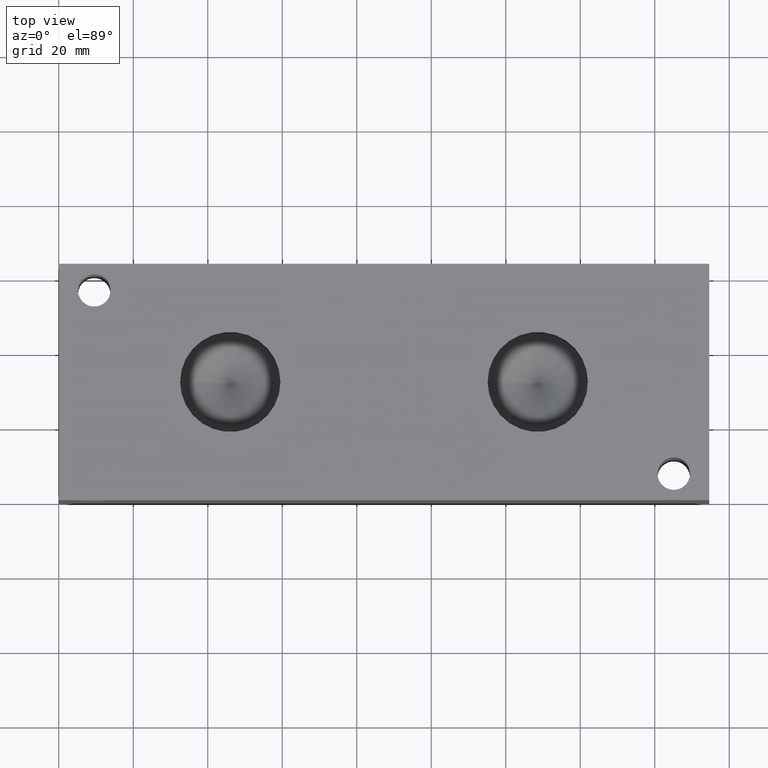
[diagram: clean part render]
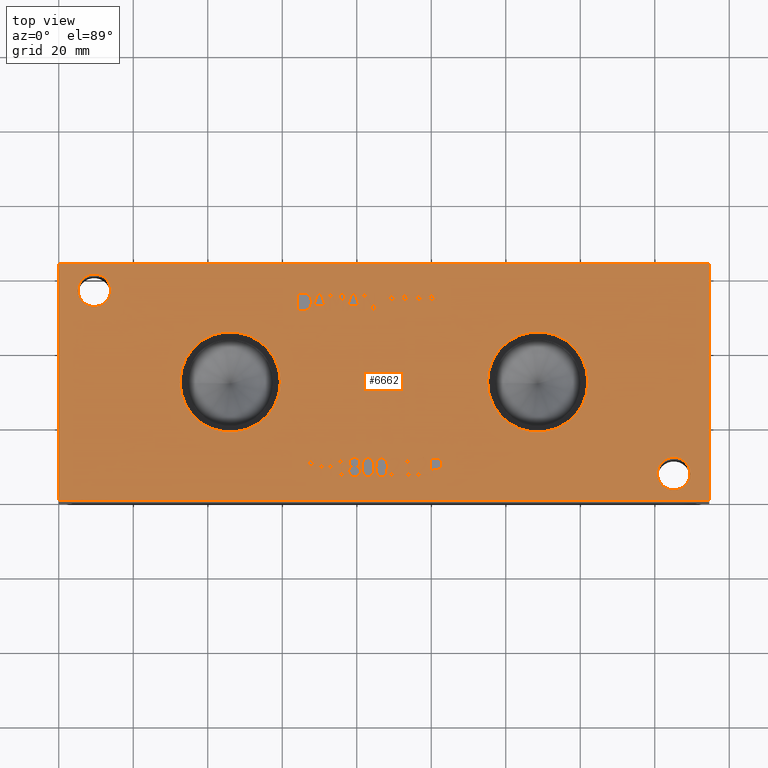
[diagram: same view with one face highlighted and labeled with its STEP entity id]
A machine part, top view. The second image highlights one B-rep face of the part: STEP entity #6662.
In plain terms, the highlighted planar face has unit normal (0, 0, 1).
Its self-contained STEP definition (entity closure, byte-faithful):
#48=CIRCLE('',#6945,4.3688);
#49=CIRCLE('',#6946,4.3688);
#50=CIRCLE('',#6947,4.3688);
#51=CIRCLE('',#6948,4.3688);
#52=CIRCLE('',#6949,13.462);
#53=CIRCLE('',#6950,13.462);
#54=CIRCLE('',#6951,13.462);
#55=CIRCLE('',#6952,13.462);
#107=FACE_BOUND('',#889,.T.);
#108=FACE_BOUND('',#890,.T.);
#109=FACE_BOUND('',#891,.T.);
#110=FACE_BOUND('',#892,.T.);
#111=FACE_BOUND('',#893,.T.);
#112=FACE_BOUND('',#894,.T.);
#113=FACE_BOUND('',#895,.T.);
#114=FACE_BOUND('',#896,.T.);
#115=FACE_BOUND('',#897,.T.);
#116=FACE_BOUND('',#898,.T.);
#117=FACE_BOUND('',#899,.T.);
#118=FACE_BOUND('',#900,.T.);
#119=FACE_BOUND('',#901,.T.);
#120=FACE_BOUND('',#902,.T.);
#121=FACE_BOUND('',#903,.T.);
#122=FACE_BOUND('',#904,.T.);
#123=FACE_BOUND('',#905,.T.);
#124=FACE_BOUND('',#906,.T.);
#125=FACE_BOUND('',#907,.T.);
#126=FACE_BOUND('',#908,.T.);
#127=FACE_BOUND('',#909,.T.);
#128=FACE_BOUND('',#910,.T.);
#129=FACE_BOUND('',#911,.T.);
#231=PLANE('',#6944);
#540=FACE_OUTER_BOUND('',#888,.T.);
#888=EDGE_LOOP('',(#4991,#4992,#4993,#4994));
#889=EDGE_LOOP('',(#4995,#4996,#4997,#4998,#4999,#5000,#5001,#5002,#5003,
#5004,#5005,#5006,#5007,#5008,#5009,#5010,#5011,#5012));
#890=EDGE_LOOP('',(#5013,#5014,#5015,#5016,#5017,#5018,#5019,#5020,#5021,
#5022,#5023,#5024,#5025,#5026,#5027,#5028,#5029,#5030));
#891=EDGE_LOOP('',(#5031,#5032,#5033,#5034,#5035,#5036,#5037,#5038,#5039,
#5040,#5041,#5042,#5043));
#892=EDGE_LOOP('',(#5044,#5045,#5046,#5047,#5048,#5049,#5050,#5051));
#893=EDGE_LOOP('',(#5052,#5053,#5054,#5055,#5056,#5057,#5058));
#894=EDGE_LOOP('',(#5059,#5060,#5061,#5062,#5063,#5064,#5065,#5066));
#895=EDGE_LOOP('',(#5067,#5068,#5069,#5070,#5071,#5072,#5073,#5074,#5075,
#5076));
#896=EDGE_LOOP('',(#5077,#5078,#5079,#5080,#5081,#5082,#5083,#5084,#5085,
#5086,#5087,#5088,#5089,#5090,#5091,#5092,#5093,#5094));
#897=EDGE_LOOP('',(#5095,#5096,#5097,#5098,#5099,#5100,#5101,#5102,#5103,
#5104,#5105,#5106,#5107,#5108,#5109,#5110,#5111,#5112));
#898=EDGE_LOOP('',(#5113,#5114));
#899=EDGE_LOOP('',(#5115,#5116));
#900=EDGE_LOOP('',(#5117,#5118));
#901=EDGE_LOOP('',(#5119,#5120));
#902=EDGE_LOOP('',(#5121,#5122,#5123,#5124,#5125,#5126,#5127,#5128,#5129,
#5130,#5131,#5132,#5133,#5134,#5135,#5136,#5137));
#903=EDGE_LOOP('',(#5138,#5139,#5140,#5141,#5142,#5143,#5144,#5145,#5146,
#5147,#5148,#5149,#5150,#5151,#5152,#5153,#5154));
#904=EDGE_LOOP('',(#5155,#5156,#5157,#5158));
#905=EDGE_LOOP('',(#5159,#5160,#5161,#5162));
#906=EDGE_LOOP('',(#5163,#5164,#5165,#5166,#5167,#5168,#5169,#5170,#5171,
#5172,#5173));
#907=EDGE_LOOP('',(#5174,#5175,#5176,#5177,#5178,#5179,#5180,#5181,#5182,
#5183,#5184,#5185,#5186,#5187,#5188,#5189,#5190,#5191));
#908=EDGE_LOOP('',(#5192,#5193,#5194,#5195,#5196,#5197,#5198,#5199,#5200,
#5201,#5202,#5203));
#909=EDGE_LOOP('',(#5204,#5205,#5206,#5207,#5208,#5209,#5210,#5211,#5212,
#5213,#5214));
#910=EDGE_LOOP('',(#5215,#5216,#5217,#5218,#5219,#5220,#5221,#5222,#5223,
#5224,#5225));
#911=EDGE_LOOP('',(#5226,#5227,#5228,#5229,#5230,#5231,#5232,#5233,#5234));
#1132=LINE('',#8674,#1838);
#1135=LINE('',#8680,#1841);
#1138=LINE('',#8686,#1844);
#1141=LINE('',#8692,#1847);
#1144=LINE('',#8698,#1850);
#1148=LINE('',#8741,#1854);
#1152=LINE('',#8749,#1858);
#1155=LINE('',#8755,#1861);
#1158=LINE('',#8761,#1864);
#1162=LINE('',#8786,#1868);
#1165=LINE('',#8792,#1871);
#1168=LINE('',#8798,#1874);
#1171=LINE('',#8804,#1877);
#1174=LINE('',#8810,#1880);
#1177=LINE('',#8815,#1883);
#1192=LINE('',#9051,#1898);
#1199=LINE('',#9133,#1905);
#1204=LINE('',#9195,#1910);
#1208=LINE('',#9203,#1914);
#1211=LINE('',#9209,#1917);
#1214=LINE('',#9215,#1920);
#1217=LINE('',#9221,#1923);
#1220=LINE('',#9227,#1926);
#1223=LINE('',#9233,#1929);
#1226=LINE('',#9239,#1932);
#1229=LINE('',#9245,#1935);
#1232=LINE('',#9251,#1938);
#1235=LINE('',#9257,#1941);
#1238=LINE('',#9262,#1944);
#1240=LINE('',#9268,#1946);
#1244=LINE('',#9276,#1950);
#1247=LINE('',#9282,#1953);
#1250=LINE('',#9288,#1956);
#1253=LINE('',#9294,#1959);
#1256=LINE('',#9300,#1962);
#1259=LINE('',#9306,#1965);
#1262=LINE('',#9312,#1968);
#1265=LINE('',#9318,#1971);
#1268=LINE('',#9324,#1974);
#1271=LINE('',#9330,#1977);
#1274=LINE('',#9336,#1980);
#1277=LINE('',#9342,#1983);
#1280=LINE('',#9348,#1986);
#1283=LINE('',#9354,#1989);
#1286=LINE('',#9360,#1992);
#1289=LINE('',#9366,#1995);
#1292=LINE('',#9371,#1998);
#1294=LINE('',#9377,#2000);
#1298=LINE('',#9385,#2004);
#1301=LINE('',#9391,#2007);
#1304=LINE('',#9397,#2010);
#1308=LINE('',#9422,#2014);
#1311=LINE('',#9428,#2017);
#1314=LINE('',#9434,#2020);
#1317=LINE('',#9440,#2023);
#1320=LINE('',#9446,#2026);
#1323=LINE('',#9451,#2029);
#1349=LINE('',#9915,#2055);
#1353=LINE('',#9923,#2059);
#1361=LINE('',#10024,#2067);
#1364=LINE('',#10030,#2070);
#1373=LINE('',#10150,#2079);
#1376=LINE('',#10155,#2082);
#1378=LINE('',#10161,#2084);
#1382=LINE('',#10169,#2088);
#1390=LINE('',#10270,#2096);
#1393=LINE('',#10276,#2099);
#1402=LINE('',#10396,#2108);
#1405=LINE('',#10401,#2111);
#1407=LINE('',#10407,#2113);
#1408=LINE('',#10409,#2114);
#1409=LINE('',#10411,#2115);
#1410=LINE('',#10412,#2116);
#1411=LINE('',#10415,#2117);
#1412=LINE('',#10417,#2118);
#1413=LINE('',#10419,#2119);
#1414=LINE('',#10421,#2120);
#1415=LINE('',#10423,#2121);
#1416=LINE('',#10425,#2122);
#1417=LINE('',#10427,#2123);
#1418=LINE('',#10429,#2124);
#1419=LINE('',#10431,#2125);
#1420=LINE('',#10433,#2126);
#1421=LINE('',#10435,#2127);
#1422=LINE('',#10437,#2128);
#1423=LINE('',#10439,#2129);
#1424=LINE('',#10441,#2130);
#1425=LINE('',#10443,#2131);
#1426=LINE('',#10445,#2132);
#1427=LINE('',#10447,#2133);
#1428=LINE('',#10448,#2134);
#1429=LINE('',#10451,#2135);
#1430=LINE('',#10453,#2136);
#1431=LINE('',#10455,#2137);
#1432=LINE('',#10457,#2138);
#1433=LINE('',#10459,#2139);
#1434=LINE('',#10461,#2140);
#1435=LINE('',#10463,#2141);
#1436=LINE('',#10465,#2142);
#1437=LINE('',#10467,#2143);
#1438=LINE('',#10469,#2144);
#1439=LINE('',#10471,#2145);
#1440=LINE('',#10473,#2146);
#1441=LINE('',#10475,#2147);
#1442=LINE('',#10477,#2148);
#1443=LINE('',#10479,#2149);
#1444=LINE('',#10481,#2150);
#1445=LINE('',#10483,#2151);
#1446=LINE('',#10484,#2152);
#1447=LINE('',#10487,#2153);
#1448=LINE('',#10489,#2154);
#1449=LINE('',#10491,#2155);
#1450=LINE('',#10493,#2156);
#1451=LINE('',#10495,#2157);
#1452=LINE('',#10497,#2158);
#1453=LINE('',#10499,#2159);
#1454=LINE('',#10501,#2160);
#1455=LINE('',#10503,#2161);
#1456=LINE('',#10505,#2162);
#1457=LINE('',#10507,#2163);
#1458=LINE('',#10509,#2164);
#1459=LINE('',#10510,#2165);
#1460=LINE('',#10513,#2166);
#1461=LINE('',#10515,#2167);
#1462=LINE('',#10517,#2168);
#1463=LINE('',#10519,#2169);
#1464=LINE('',#10521,#2170);
#1465=LINE('',#10523,#2171);
#1466=LINE('',#10525,#2172);
#1467=LINE('',#10526,#2173);
#1468=LINE('',#10544,#2174);
#1469=LINE('',#10546,#2175);
#1470=LINE('',#10548,#2176);
#1471=LINE('',#10555,#2177);
#1472=LINE('',#10557,#2178);
#1473=LINE('',#10559,#2179);
#1474=LINE('',#10561,#2180);
#1475=LINE('',#10563,#2181);
#1476=LINE('',#10565,#2182);
#1477=LINE('',#10567,#2183);
#1478=LINE('',#10568,#2184);
#1479=LINE('',#10571,#2185);
#1480=LINE('',#10573,#2186);
#1481=LINE('',#10575,#2187);
#1482=LINE('',#10577,#2188);
#1483=LINE('',#10579,#2189);
#1484=LINE('',#10581,#2190);
#1485=LINE('',#10583,#2191);
#1486=LINE('',#10585,#2192);
#1487=LINE('',#10587,#2193);
#1488=LINE('',#10588,#2194);
#1489=LINE('',#10591,#2195);
#1490=LINE('',#10593,#2196);
#1491=LINE('',#10595,#2197);
#1492=LINE('',#10597,#2198);
#1493=LINE('',#10599,#2199);
#1494=LINE('',#10601,#2200);
#1495=LINE('',#10603,#2201);
#1496=LINE('',#10605,#2202);
#1497=LINE('',#10607,#2203);
#1498=LINE('',#10609,#2204);
#1499=LINE('',#10611,#2205);
#1500=LINE('',#10613,#2206);
#1501=LINE('',#10615,#2207);
#1502=LINE('',#10617,#2208);
#1503=LINE('',#10619,#2209);
#1504=LINE('',#10621,#2210);
#1505=LINE('',#10623,#2211);
#1506=LINE('',#10624,#2212);
#1507=LINE('',#10627,#2213);
#1508=LINE('',#10629,#2214);
#1509=LINE('',#10631,#2215);
#1510=LINE('',#10633,#2216);
#1511=LINE('',#10635,#2217);
#1512=LINE('',#10637,#2218);
#1513=LINE('',#10639,#2219);
#1514=LINE('',#10641,#2220);
#1515=LINE('',#10643,#2221);
#1516=LINE('',#10645,#2222);
#1517=LINE('',#10647,#2223);
#1518=LINE('',#10649,#2224);
#1519=LINE('',#10651,#2225);
#1520=LINE('',#10653,#2226);
#1521=LINE('',#10655,#2227);
#1522=LINE('',#10657,#2228);
#1523=LINE('',#10659,#2229);
#1524=LINE('',#10660,#2230);
#1838=VECTOR('',#7210,10.);
#1841=VECTOR('',#7215,10.);
#1844=VECTOR('',#7220,10.);
#1847=VECTOR('',#7225,10.);
#1850=VECTOR('',#7230,10.);
#1854=VECTOR('',#7238,10.);
#1858=VECTOR('',#7244,10.);
#1861=VECTOR('',#7249,10.);
#1864=VECTOR('',#7254,10.);
#1868=VECTOR('',#7260,10.);
#1871=VECTOR('',#7265,10.);
#1874=VECTOR('',#7270,10.);
#1877=VECTOR('',#7275,10.);
#1880=VECTOR('',#7280,10.);
#1883=VECTOR('',#7285,10.);
#1898=VECTOR('',#7304,10.);
#1905=VECTOR('',#7313,10.);
#1910=VECTOR('',#7322,10.);
#1914=VECTOR('',#7328,10.);
#1917=VECTOR('',#7333,10.);
#1920=VECTOR('',#7338,10.);
#1923=VECTOR('',#7343,10.);
#1926=VECTOR('',#7348,10.);
#1929=VECTOR('',#7353,10.);
#1932=VECTOR('',#7358,10.);
#1935=VECTOR('',#7363,10.);
#1938=VECTOR('',#7368,10.);
#1941=VECTOR('',#7373,10.);
#1944=VECTOR('',#7378,10.);
#1946=VECTOR('',#7384,10.);
#1950=VECTOR('',#7390,10.);
#1953=VECTOR('',#7395,10.);
#1956=VECTOR('',#7400,10.);
#1959=VECTOR('',#7405,10.);
#1962=VECTOR('',#7410,10.);
#1965=VECTOR('',#7415,10.);
#1968=VECTOR('',#7420,10.);
#1971=VECTOR('',#7425,10.);
#1974=VECTOR('',#7430,10.);
#1977=VECTOR('',#7435,10.);
#1980=VECTOR('',#7440,10.);
#1983=VECTOR('',#7445,10.);
#1986=VECTOR('',#7450,10.);
#1989=VECTOR('',#7455,10.);
#1992=VECTOR('',#7460,10.);
#1995=VECTOR('',#7465,10.);
#1998=VECTOR('',#7470,10.);
#2000=VECTOR('',#7476,10.);
#2004=VECTOR('',#7482,10.);
#2007=VECTOR('',#7487,10.);
#2010=VECTOR('',#7492,10.);
#2014=VECTOR('',#7498,10.);
#2017=VECTOR('',#7503,10.);
#2020=VECTOR('',#7508,10.);
#2023=VECTOR('',#7513,10.);
#2026=VECTOR('',#7518,10.);
#2029=VECTOR('',#7523,10.);
#2055=VECTOR('',#7557,10.);
#2059=VECTOR('',#7563,10.);
#2067=VECTOR('',#7573,10.);
#2070=VECTOR('',#7578,10.);
#2079=VECTOR('',#7589,10.);
#2082=VECTOR('',#7594,10.);
#2084=VECTOR('',#7600,10.);
#2088=VECTOR('',#7606,10.);
#2096=VECTOR('',#7616,10.);
#2099=VECTOR('',#7621,10.);
#2108=VECTOR('',#7632,10.);
#2111=VECTOR('',#7637,10.);
#2113=VECTOR('',#7643,10.);
#2114=VECTOR('',#7644,10.);
#2115=VECTOR('',#7645,10.);
#2116=VECTOR('',#7646,10.);
#2117=VECTOR('',#7647,10.);
#2118=VECTOR('',#7648,10.);
#2119=VECTOR('',#7649,10.);
#2120=VECTOR('',#7650,10.);
#2121=VECTOR('',#7651,10.);
#2122=VECTOR('',#7652,10.);
#2123=VECTOR('',#7653,10.);
#2124=VECTOR('',#7654,10.);
#2125=VECTOR('',#7655,10.);
#2126=VECTOR('',#7656,10.);
#2127=VECTOR('',#7657,10.);
#2128=VECTOR('',#7658,10.);
#2129=VECTOR('',#7659,10.);
#2130=VECTOR('',#7660,10.);
#2131=VECTOR('',#7661,10.);
#2132=VECTOR('',#7662,10.);
#2133=VECTOR('',#7663,10.);
#2134=VECTOR('',#7664,10.);
#2135=VECTOR('',#7665,10.);
#2136=VECTOR('',#7666,10.);
#2137=VECTOR('',#7667,10.);
#2138=VECTOR('',#7668,10.);
#2139=VECTOR('',#7669,10.);
#2140=VECTOR('',#7670,10.);
#2141=VECTOR('',#7671,10.);
#2142=VECTOR('',#7672,10.);
#2143=VECTOR('',#7673,10.);
#2144=VECTOR('',#7674,10.);
#2145=VECTOR('',#7675,10.);
#2146=VECTOR('',#7676,10.);
#2147=VECTOR('',#7677,10.);
#2148=VECTOR('',#7678,10.);
#2149=VECTOR('',#7679,10.);
#2150=VECTOR('',#7680,10.);
#2151=VECTOR('',#7681,10.);
#2152=VECTOR('',#7682,10.);
#2153=VECTOR('',#7683,10.);
#2154=VECTOR('',#7684,10.);
#2155=VECTOR('',#7685,10.);
#2156=VECTOR('',#7686,10.);
#2157=VECTOR('',#7687,10.);
#2158=VECTOR('',#7688,10.);
#2159=VECTOR('',#7689,10.);
#2160=VECTOR('',#7690,10.);
#2161=VECTOR('',#7691,10.);
#2162=VECTOR('',#7692,10.);
#2163=VECTOR('',#7693,10.);
#2164=VECTOR('',#7694,10.);
#2165=VECTOR('',#7695,10.);
#2166=VECTOR('',#7696,10.);
#2167=VECTOR('',#7697,10.);
#2168=VECTOR('',#7698,10.);
#2169=VECTOR('',#7699,10.);
#2170=VECTOR('',#7700,10.);
#2171=VECTOR('',#7701,10.);
#2172=VECTOR('',#7702,10.);
#2173=VECTOR('',#7703,10.);
#2174=VECTOR('',#7704,10.);
#2175=VECTOR('',#7705,10.);
#2176=VECTOR('',#7706,10.);
#2177=VECTOR('',#7707,10.);
#2178=VECTOR('',#7708,10.);
#2179=VECTOR('',#7709,10.);
#2180=VECTOR('',#7710,10.);
#2181=VECTOR('',#7711,10.);
#2182=VECTOR('',#7712,10.);
#2183=VECTOR('',#7713,10.);
#2184=VECTOR('',#7714,10.);
#2185=VECTOR('',#7715,10.);
#2186=VECTOR('',#7716,10.);
#2187=VECTOR('',#7717,10.);
#2188=VECTOR('',#7718,10.);
#2189=VECTOR('',#7719,10.);
#2190=VECTOR('',#7720,10.);
#2191=VECTOR('',#7721,10.);
#2192=VECTOR('',#7722,10.);
#2193=VECTOR('',#7723,10.);
#2194=VECTOR('',#7724,10.);
#2195=VECTOR('',#7725,10.);
#2196=VECTOR('',#7726,10.);
#2197=VECTOR('',#7727,10.);
#2198=VECTOR('',#7728,10.);
#2199=VECTOR('',#7729,10.);
#2200=VECTOR('',#7730,10.);
#2201=VECTOR('',#7731,10.);
#2202=VECTOR('',#7732,10.);
#2203=VECTOR('',#7733,10.);
#2204=VECTOR('',#7734,10.);
#2205=VECTOR('',#7735,10.);
#2206=VECTOR('',#7736,10.);
#2207=VECTOR('',#7737,10.);
#2208=VECTOR('',#7738,10.);
#2209=VECTOR('',#7739,10.);
#2210=VECTOR('',#7740,10.);
#2211=VECTOR('',#7741,10.);
#2212=VECTOR('',#7742,10.);
#2213=VECTOR('',#7743,10.);
#2214=VECTOR('',#7744,10.);
#2215=VECTOR('',#7745,10.);
#2216=VECTOR('',#7746,10.);
#2217=VECTOR('',#7747,10.);
#2218=VECTOR('',#7748,10.);
#2219=VECTOR('',#7749,10.);
#2220=VECTOR('',#7750,10.);
#2221=VECTOR('',#7751,10.);
#2222=VECTOR('',#7752,10.);
#2223=VECTOR('',#7753,10.);
#2224=VECTOR('',#7754,10.);
#2225=VECTOR('',#7755,10.);
#2226=VECTOR('',#7756,10.);
#2227=VECTOR('',#7757,10.);
#2228=VECTOR('',#7758,10.);
#2229=VECTOR('',#7759,10.);
#2230=VECTOR('',#7760,10.);
#2536=B_SPLINE_CURVE_WITH_KNOTS('',2,(#8641,#8642,#8643,#8644),
 .UNSPECIFIED.,.F.,.F.,(3,1,3),(0.,1.,2.),.UNSPECIFIED.);
#2538=B_SPLINE_CURVE_WITH_KNOTS('',2,(#8662,#8663,#8664,#8665),
 .UNSPECIFIED.,.F.,.F.,(3,1,3),(0.,1.,2.),.UNSPECIFIED.);
#2540=B_SPLINE_CURVE_WITH_KNOTS('',2,(#8711,#8712,#8713,#8714),
 .UNSPECIFIED.,.F.,.F.,(3,1,3),(0.,1.,2.),.UNSPECIFIED.);
#2542=B_SPLINE_CURVE_WITH_KNOTS('',2,(#8729,#8730,#8731,#8732),
 .UNSPECIFIED.,.F.,.F.,(3,1,3),(0.,1.,2.),.UNSPECIFIED.);
#2544=B_SPLINE_CURVE_WITH_KNOTS('',2,(#8774,#8775,#8776,#8777),
 .UNSPECIFIED.,.F.,.F.,(3,1,3),(0.,1.,2.),.UNSPECIFIED.);
#2566=B_SPLINE_CURVE_WITH_KNOTS('',2,(#9018,#9019,#9020,#9021),
 .UNSPECIFIED.,.F.,.F.,(3,1,3),(0.,1.,2.),.UNSPECIFIED.);
#2568=B_SPLINE_CURVE_WITH_KNOTS('',2,(#9039,#9040,#9041,#9042),
 .UNSPECIFIED.,.F.,.F.,(3,1,3),(0.,1.,2.),.UNSPECIFIED.);
#2570=B_SPLINE_CURVE_WITH_KNOTS('',2,(#9064,#9065,#9066,#9067),
 .UNSPECIFIED.,.F.,.F.,(3,1,3),(0.,1.,2.),.UNSPECIFIED.);
#2572=B_SPLINE_CURVE_WITH_KNOTS('',2,(#9083,#9084,#9085,#9086),
 .UNSPECIFIED.,.F.,.F.,(3,1,3),(0.,1.,2.),.UNSPECIFIED.);
#2574=B_SPLINE_CURVE_WITH_KNOTS('',2,(#9102,#9103,#9104,#9105),
 .UNSPECIFIED.,.F.,.F.,(3,1,3),(0.,1.,2.),.UNSPECIFIED.);
#2576=B_SPLINE_CURVE_WITH_KNOTS('',2,(#9121,#9122,#9123,#9124),
 .UNSPECIFIED.,.F.,.F.,(3,1,3),(0.,1.,2.),.UNSPECIFIED.);
#2578=B_SPLINE_CURVE_WITH_KNOTS('',2,(#9146,#9147,#9148,#9149),
 .UNSPECIFIED.,.F.,.F.,(3,1,3),(0.,1.,2.),.UNSPECIFIED.);
#2580=B_SPLINE_CURVE_WITH_KNOTS('',2,(#9165,#9166,#9167,#9168),
 .UNSPECIFIED.,.F.,.F.,(3,1,3),(0.,1.,2.),.UNSPECIFIED.);
#2582=B_SPLINE_CURVE_WITH_KNOTS('',2,(#9183,#9184,#9185,#9186),
 .UNSPECIFIED.,.F.,.F.,(3,1,3),(0.,1.,2.),.UNSPECIFIED.);
#2584=B_SPLINE_CURVE_WITH_KNOTS('',2,(#9410,#9411,#9412,#9413),
 .UNSPECIFIED.,.F.,.F.,(3,1,3),(0.,1.,2.),.UNSPECIFIED.);
#2602=B_SPLINE_CURVE_WITH_KNOTS('',2,(#9616,#9617,#9618,#9619),
 .UNSPECIFIED.,.F.,.F.,(3,1,3),(0.,1.,2.),.UNSPECIFIED.);
#2604=B_SPLINE_CURVE_WITH_KNOTS('',2,(#9637,#9638,#9639,#9640),
 .UNSPECIFIED.,.F.,.F.,(3,1,3),(0.,1.,2.),.UNSPECIFIED.);
#2606=B_SPLINE_CURVE_WITH_KNOTS('',2,(#9656,#9657,#9658,#9659),
 .UNSPECIFIED.,.F.,.F.,(3,1,3),(0.,1.,2.),.UNSPECIFIED.);
#2608=B_SPLINE_CURVE_WITH_KNOTS('',2,(#9674,#9675,#9676,#9677),
 .UNSPECIFIED.,.F.,.F.,(3,1,3),(0.,1.,2.),.UNSPECIFIED.);
#2626=B_SPLINE_CURVE_WITH_KNOTS('',2,(#9845,#9846,#9847,#9848),
 .UNSPECIFIED.,.F.,.F.,(3,1,3),(0.,1.,2.),.UNSPECIFIED.);
#2628=B_SPLINE_CURVE_WITH_KNOTS('',2,(#9866,#9867,#9868,#9869),
 .UNSPECIFIED.,.F.,.F.,(3,1,3),(0.,1.,2.),.UNSPECIFIED.);
#2630=B_SPLINE_CURVE_WITH_KNOTS('',2,(#9885,#9886,#9887,#9888),
 .UNSPECIFIED.,.F.,.F.,(3,1,3),(0.,1.,2.),.UNSPECIFIED.);
#2632=B_SPLINE_CURVE_WITH_KNOTS('',2,(#9903,#9904,#9905,#9906),
 .UNSPECIFIED.,.F.,.F.,(3,1,3),(0.,1.,2.),.UNSPECIFIED.);
#2634=B_SPLINE_CURVE_WITH_KNOTS('',2,(#9936,#9937,#9938,#9939),
 .UNSPECIFIED.,.F.,.F.,(3,1,3),(0.,1.,2.),.UNSPECIFIED.);
#2636=B_SPLINE_CURVE_WITH_KNOTS('',2,(#9955,#9956,#9957,#9958),
 .UNSPECIFIED.,.F.,.F.,(3,1,3),(0.,1.,2.),.UNSPECIFIED.);
#2638=B_SPLINE_CURVE_WITH_KNOTS('',2,(#9974,#9975,#9976,#9977),
 .UNSPECIFIED.,.F.,.F.,(3,1,3),(0.,1.,2.),.UNSPECIFIED.);
#2640=B_SPLINE_CURVE_WITH_KNOTS('',2,(#9993,#9994,#9995,#9996),
 .UNSPECIFIED.,.F.,.F.,(3,1,3),(0.,1.,2.),.UNSPECIFIED.);
#2642=B_SPLINE_CURVE_WITH_KNOTS('',2,(#10012,#10013,#10014,#10015),
 .UNSPECIFIED.,.F.,.F.,(3,1,3),(0.,1.,2.),.UNSPECIFIED.);
#2644=B_SPLINE_CURVE_WITH_KNOTS('',2,(#10043,#10044,#10045,#10046),
 .UNSPECIFIED.,.F.,.F.,(3,1,3),(0.,1.,2.),.UNSPECIFIED.);
#2646=B_SPLINE_CURVE_WITH_KNOTS('',2,(#10062,#10063,#10064,#10065),
 .UNSPECIFIED.,.F.,.F.,(3,1,3),(0.,1.,2.),.UNSPECIFIED.);
#2648=B_SPLINE_CURVE_WITH_KNOTS('',2,(#10081,#10082,#10083,#10084),
 .UNSPECIFIED.,.F.,.F.,(3,1,3),(0.,1.,2.),.UNSPECIFIED.);
#2650=B_SPLINE_CURVE_WITH_KNOTS('',2,(#10100,#10101,#10102,#10103),
 .UNSPECIFIED.,.F.,.F.,(3,1,3),(0.,1.,2.),.UNSPECIFIED.);
#2652=B_SPLINE_CURVE_WITH_KNOTS('',2,(#10119,#10120,#10121,#10122),
 .UNSPECIFIED.,.F.,.F.,(3,1,3),(0.,1.,2.),.UNSPECIFIED.);
#2654=B_SPLINE_CURVE_WITH_KNOTS('',2,(#10138,#10139,#10140,#10141),
 .UNSPECIFIED.,.F.,.F.,(3,1,3),(0.,1.,2.),.UNSPECIFIED.);
#2656=B_SPLINE_CURVE_WITH_KNOTS('',2,(#10182,#10183,#10184,#10185),
 .UNSPECIFIED.,.F.,.F.,(3,1,3),(0.,1.,2.),.UNSPECIFIED.);
#2658=B_SPLINE_CURVE_WITH_KNOTS('',2,(#10201,#10202,#10203,#10204),
 .UNSPECIFIED.,.F.,.F.,(3,1,3),(0.,1.,2.),.UNSPECIFIED.);
#2660=B_SPLINE_CURVE_WITH_KNOTS('',2,(#10220,#10221,#10222,#10223),
 .UNSPECIFIED.,.F.,.F.,(3,1,3),(0.,1.,2.),.UNSPECIFIED.);
#2662=B_SPLINE_CURVE_WITH_KNOTS('',2,(#10239,#10240,#10241,#10242),
 .UNSPECIFIED.,.F.,.F.,(3,1,3),(0.,1.,2.),.UNSPECIFIED.);
#2664=B_SPLINE_CURVE_WITH_KNOTS('',2,(#10258,#10259,#10260,#10261),
 .UNSPECIFIED.,.F.,.F.,(3,1,3),(0.,1.,2.),.UNSPECIFIED.);
#2666=B_SPLINE_CURVE_WITH_KNOTS('',2,(#10289,#10290,#10291,#10292),
 .UNSPECIFIED.,.F.,.F.,(3,1,3),(0.,1.,2.),.UNSPECIFIED.);
#2668=B_SPLINE_CURVE_WITH_KNOTS('',2,(#10308,#10309,#10310,#10311),
 .UNSPECIFIED.,.F.,.F.,(3,1,3),(0.,1.,2.),.UNSPECIFIED.);
#2670=B_SPLINE_CURVE_WITH_KNOTS('',2,(#10327,#10328,#10329,#10330),
 .UNSPECIFIED.,.F.,.F.,(3,1,3),(0.,1.,2.),.UNSPECIFIED.);
#2672=B_SPLINE_CURVE_WITH_KNOTS('',2,(#10346,#10347,#10348,#10349),
 .UNSPECIFIED.,.F.,.F.,(3,1,3),(0.,1.,2.),.UNSPECIFIED.);
#2674=B_SPLINE_CURVE_WITH_KNOTS('',2,(#10365,#10366,#10367,#10368),
 .UNSPECIFIED.,.F.,.F.,(3,1,3),(0.,1.,2.),.UNSPECIFIED.);
#2676=B_SPLINE_CURVE_WITH_KNOTS('',2,(#10384,#10385,#10386,#10387),
 .UNSPECIFIED.,.F.,.F.,(3,1,3),(0.,1.,2.),.UNSPECIFIED.);
#2678=B_SPLINE_CURVE_WITH_KNOTS('',2,(#10529,#10530,#10531,#10532),
 .UNSPECIFIED.,.F.,.F.,(3,1,3),(0.,1.,2.),.UNSPECIFIED.);
#2679=B_SPLINE_CURVE_WITH_KNOTS('',2,(#10534,#10535,#10536,#10537),
 .UNSPECIFIED.,.F.,.F.,(3,1,3),(0.,1.,2.),.UNSPECIFIED.);
#2680=B_SPLINE_CURVE_WITH_KNOTS('',2,(#10539,#10540,#10541,#10542),
 .UNSPECIFIED.,.F.,.F.,(3,1,3),(0.,1.,2.),.UNSPECIFIED.);
#2681=B_SPLINE_CURVE_WITH_KNOTS('',2,(#10549,#10550,#10551,#10552),
 .UNSPECIFIED.,.F.,.F.,(3,1,3),(0.,1.,2.),.UNSPECIFIED.);
#2708=VERTEX_POINT('',#8639);
#2709=VERTEX_POINT('',#8640);
#2712=VERTEX_POINT('',#8661);
#2714=VERTEX_POINT('',#8673);
#2716=VERTEX_POINT('',#8679);
#2718=VERTEX_POINT('',#8685);
#2720=VERTEX_POINT('',#8691);
#2722=VERTEX_POINT('',#8697);
#2724=VERTEX_POINT('',#8710);
#2726=VERTEX_POINT('',#8739);
#2727=VERTEX_POINT('',#8740);
#2730=VERTEX_POINT('',#8748);
#2732=VERTEX_POINT('',#8754);
#2734=VERTEX_POINT('',#8760);
#2736=VERTEX_POINT('',#8773);
#2738=VERTEX_POINT('',#8785);
#2740=VERTEX_POINT('',#8791);
#2742=VERTEX_POINT('',#8797);
#2744=VERTEX_POINT('',#8803);
#2746=VERTEX_POINT('',#8809);
#2768=VERTEX_POINT('',#9016);
#2769=VERTEX_POINT('',#9017);
#2772=VERTEX_POINT('',#9038);
#2774=VERTEX_POINT('',#9050);
#2776=VERTEX_POINT('',#9063);
#2778=VERTEX_POINT('',#9082);
#2780=VERTEX_POINT('',#9101);
#2782=VERTEX_POINT('',#9120);
#2784=VERTEX_POINT('',#9132);
#2786=VERTEX_POINT('',#9145);
#2788=VERTEX_POINT('',#9164);
#2790=VERTEX_POINT('',#9193);
#2791=VERTEX_POINT('',#9194);
#2794=VERTEX_POINT('',#9202);
#2796=VERTEX_POINT('',#9208);
#2798=VERTEX_POINT('',#9214);
#2800=VERTEX_POINT('',#9220);
#2802=VERTEX_POINT('',#9226);
#2804=VERTEX_POINT('',#9232);
#2806=VERTEX_POINT('',#9238);
#2808=VERTEX_POINT('',#9244);
#2810=VERTEX_POINT('',#9250);
#2812=VERTEX_POINT('',#9256);
#2814=VERTEX_POINT('',#9266);
#2815=VERTEX_POINT('',#9267);
#2818=VERTEX_POINT('',#9275);
#2820=VERTEX_POINT('',#9281);
#2822=VERTEX_POINT('',#9287);
#2824=VERTEX_POINT('',#9293);
#2826=VERTEX_POINT('',#9299);
#2828=VERTEX_POINT('',#9305);
#2830=VERTEX_POINT('',#9311);
#2832=VERTEX_POINT('',#9317);
#2834=VERTEX_POINT('',#9323);
#2836=VERTEX_POINT('',#9329);
#2838=VERTEX_POINT('',#9335);
#2840=VERTEX_POINT('',#9341);
#2842=VERTEX_POINT('',#9347);
#2844=VERTEX_POINT('',#9353);
#2846=VERTEX_POINT('',#9359);
#2848=VERTEX_POINT('',#9365);
#2850=VERTEX_POINT('',#9375);
#2851=VERTEX_POINT('',#9376);
#2854=VERTEX_POINT('',#9384);
#2856=VERTEX_POINT('',#9390);
#2858=VERTEX_POINT('',#9396);
#2860=VERTEX_POINT('',#9409);
#2862=VERTEX_POINT('',#9421);
#2864=VERTEX_POINT('',#9427);
#2866=VERTEX_POINT('',#9433);
#2868=VERTEX_POINT('',#9439);
#2870=VERTEX_POINT('',#9445);
#2888=VERTEX_POINT('',#9614);
#2889=VERTEX_POINT('',#9615);
#2892=VERTEX_POINT('',#9636);
#2894=VERTEX_POINT('',#9655);
#2912=VERTEX_POINT('',#9843);
#2913=VERTEX_POINT('',#9844);
#2916=VERTEX_POINT('',#9865);
#2918=VERTEX_POINT('',#9884);
#2920=VERTEX_POINT('',#9913);
#2921=VERTEX_POINT('',#9914);
#2924=VERTEX_POINT('',#9922);
#2926=VERTEX_POINT('',#9935);
#2928=VERTEX_POINT('',#9954);
#2930=VERTEX_POINT('',#9973);
#2932=VERTEX_POINT('',#9992);
#2934=VERTEX_POINT('',#10011);
#2936=VERTEX_POINT('',#10023);
#2938=VERTEX_POINT('',#10029);
#2940=VERTEX_POINT('',#10042);
#2942=VERTEX_POINT('',#10061);
#2944=VERTEX_POINT('',#10080);
#2946=VERTEX_POINT('',#10099);
#2948=VERTEX_POINT('',#10118);
#2950=VERTEX_POINT('',#10137);
#2952=VERTEX_POINT('',#10149);
#2954=VERTEX_POINT('',#10159);
#2955=VERTEX_POINT('',#10160);
#2958=VERTEX_POINT('',#10168);
#2960=VERTEX_POINT('',#10181);
#2962=VERTEX_POINT('',#10200);
#2964=VERTEX_POINT('',#10219);
#2966=VERTEX_POINT('',#10238);
#2968=VERTEX_POINT('',#10257);
#2970=VERTEX_POINT('',#10269);
#2972=VERTEX_POINT('',#10275);
#2974=VERTEX_POINT('',#10288);
#2976=VERTEX_POINT('',#10307);
#2978=VERTEX_POINT('',#10326);
#2980=VERTEX_POINT('',#10345);
#2982=VERTEX_POINT('',#10364);
#2984=VERTEX_POINT('',#10383);
#2986=VERTEX_POINT('',#10395);
#2988=VERTEX_POINT('',#10405);
#2989=VERTEX_POINT('',#10406);
#2990=VERTEX_POINT('',#10408);
#2991=VERTEX_POINT('',#10410);
#2992=VERTEX_POINT('',#10413);
#2993=VERTEX_POINT('',#10414);
#2994=VERTEX_POINT('',#10416);
#2995=VERTEX_POINT('',#10418);
#2996=VERTEX_POINT('',#10420);
#2997=VERTEX_POINT('',#10422);
#2998=VERTEX_POINT('',#10424);
#2999=VERTEX_POINT('',#10426);
#3000=VERTEX_POINT('',#10428);
#3001=VERTEX_POINT('',#10430);
#3002=VERTEX_POINT('',#10432);
#3003=VERTEX_POINT('',#10434);
#3004=VERTEX_POINT('',#10436);
#3005=VERTEX_POINT('',#10438);
#3006=VERTEX_POINT('',#10440);
#3007=VERTEX_POINT('',#10442);
#3008=VERTEX_POINT('',#10444);
#3009=VERTEX_POINT('',#10446);
#3010=VERTEX_POINT('',#10449);
#3011=VERTEX_POINT('',#10450);
#3012=VERTEX_POINT('',#10452);
#3013=VERTEX_POINT('',#10454);
#3014=VERTEX_POINT('',#10456);
#3015=VERTEX_POINT('',#10458);
#3016=VERTEX_POINT('',#10460);
#3017=VERTEX_POINT('',#10462);
#3018=VERTEX_POINT('',#10464);
#3019=VERTEX_POINT('',#10466);
#3020=VERTEX_POINT('',#10468);
#3021=VERTEX_POINT('',#10470);
#3022=VERTEX_POINT('',#10472);
#3023=VERTEX_POINT('',#10474);
#3024=VERTEX_POINT('',#10476);
#3025=VERTEX_POINT('',#10478);
#3026=VERTEX_POINT('',#10480);
#3027=VERTEX_POINT('',#10482);
#3028=VERTEX_POINT('',#10485);
#3029=VERTEX_POINT('',#10486);
#3030=VERTEX_POINT('',#10488);
#3031=VERTEX_POINT('',#10490);
#3032=VERTEX_POINT('',#10492);
#3033=VERTEX_POINT('',#10494);
#3034=VERTEX_POINT('',#10496);
#3035=VERTEX_POINT('',#10498);
#3036=VERTEX_POINT('',#10500);
#3037=VERTEX_POINT('',#10502);
#3038=VERTEX_POINT('',#10504);
#3039=VERTEX_POINT('',#10506);
#3040=VERTEX_POINT('',#10508);
#3041=VERTEX_POINT('',#10511);
#3042=VERTEX_POINT('',#10512);
#3043=VERTEX_POINT('',#10514);
#3044=VERTEX_POINT('',#10516);
#3045=VERTEX_POINT('',#10518);
#3046=VERTEX_POINT('',#10520);
#3047=VERTEX_POINT('',#10522);
#3048=VERTEX_POINT('',#10524);
#3049=VERTEX_POINT('',#10527);
#3050=VERTEX_POINT('',#10528);
#3051=VERTEX_POINT('',#10533);
#3052=VERTEX_POINT('',#10538);
#3053=VERTEX_POINT('',#10543);
#3054=VERTEX_POINT('',#10545);
#3055=VERTEX_POINT('',#10547);
#3056=VERTEX_POINT('',#10553);
#3057=VERTEX_POINT('',#10554);
#3058=VERTEX_POINT('',#10556);
#3059=VERTEX_POINT('',#10558);
#3060=VERTEX_POINT('',#10560);
#3061=VERTEX_POINT('',#10562);
#3062=VERTEX_POINT('',#10564);
#3063=VERTEX_POINT('',#10566);
#3064=VERTEX_POINT('',#10569);
#3065=VERTEX_POINT('',#10570);
#3066=VERTEX_POINT('',#10572);
#3067=VERTEX_POINT('',#10574);
#3068=VERTEX_POINT('',#10576);
#3069=VERTEX_POINT('',#10578);
#3070=VERTEX_POINT('',#10580);
#3071=VERTEX_POINT('',#10582);
#3072=VERTEX_POINT('',#10584);
#3073=VERTEX_POINT('',#10586);
#3074=VERTEX_POINT('',#10589);
#3075=VERTEX_POINT('',#10590);
#3076=VERTEX_POINT('',#10592);
#3077=VERTEX_POINT('',#10594);
#3078=VERTEX_POINT('',#10596);
#3079=VERTEX_POINT('',#10598);
#3080=VERTEX_POINT('',#10600);
#3081=VERTEX_POINT('',#10602);
#3082=VERTEX_POINT('',#10604);
#3083=VERTEX_POINT('',#10606);
#3084=VERTEX_POINT('',#10608);
#3085=VERTEX_POINT('',#10610);
#3086=VERTEX_POINT('',#10612);
#3087=VERTEX_POINT('',#10614);
#3088=VERTEX_POINT('',#10616);
#3089=VERTEX_POINT('',#10618);
#3090=VERTEX_POINT('',#10620);
#3091=VERTEX_POINT('',#10622);
#3092=VERTEX_POINT('',#10625);
#3093=VERTEX_POINT('',#10626);
#3094=VERTEX_POINT('',#10628);
#3095=VERTEX_POINT('',#10630);
#3096=VERTEX_POINT('',#10632);
#3097=VERTEX_POINT('',#10634);
#3098=VERTEX_POINT('',#10636);
#3099=VERTEX_POINT('',#10638);
#3100=VERTEX_POINT('',#10640);
#3101=VERTEX_POINT('',#10642);
#3102=VERTEX_POINT('',#10644);
#3103=VERTEX_POINT('',#10646);
#3104=VERTEX_POINT('',#10648);
#3105=VERTEX_POINT('',#10650);
#3106=VERTEX_POINT('',#10652);
#3107=VERTEX_POINT('',#10654);
#3108=VERTEX_POINT('',#10656);
#3109=VERTEX_POINT('',#10658);
#3110=VERTEX_POINT('',#10661);
#3111=VERTEX_POINT('',#10662);
#3112=VERTEX_POINT('',#10665);
#3113=VERTEX_POINT('',#10666);
#3114=VERTEX_POINT('',#10669);
#3115=VERTEX_POINT('',#10670);
#3116=VERTEX_POINT('',#10673);
#3117=VERTEX_POINT('',#10674);
#3343=EDGE_CURVE('',#2708,#2709,#2536,.T.);
#3347=EDGE_CURVE('',#2712,#2708,#2538,.T.);
#3350=EDGE_CURVE('',#2714,#2712,#1132,.T.);
#3353=EDGE_CURVE('',#2716,#2714,#1135,.T.);
#3356=EDGE_CURVE('',#2718,#2716,#1138,.T.);
#3359=EDGE_CURVE('',#2720,#2718,#1141,.T.);
#3362=EDGE_CURVE('',#2722,#2720,#1144,.T.);
#3365=EDGE_CURVE('',#2724,#2722,#2540,.T.);
#3368=EDGE_CURVE('',#2709,#2724,#2542,.T.);
#3370=EDGE_CURVE('',#2726,#2727,#1148,.T.);
#3374=EDGE_CURVE('',#2730,#2726,#1152,.T.);
#3377=EDGE_CURVE('',#2732,#2730,#1155,.T.);
#3380=EDGE_CURVE('',#2734,#2732,#1158,.T.);
#3383=EDGE_CURVE('',#2736,#2734,#2544,.T.);
#3386=EDGE_CURVE('',#2738,#2736,#1162,.T.);
#3389=EDGE_CURVE('',#2740,#2738,#1165,.T.);
#3392=EDGE_CURVE('',#2742,#2740,#1168,.T.);
#3395=EDGE_CURVE('',#2744,#2742,#1171,.T.);
#3398=EDGE_CURVE('',#2746,#2744,#1174,.T.);
#3401=EDGE_CURVE('',#2727,#2746,#1177,.T.);
#3433=EDGE_CURVE('',#2768,#2769,#2566,.T.);
#3437=EDGE_CURVE('',#2772,#2768,#2568,.T.);
#3440=EDGE_CURVE('',#2774,#2772,#1192,.T.);
#3443=EDGE_CURVE('',#2776,#2774,#2570,.T.);
#3446=EDGE_CURVE('',#2778,#2776,#2572,.T.);
#3449=EDGE_CURVE('',#2780,#2778,#2574,.T.);
#3452=EDGE_CURVE('',#2782,#2780,#2576,.T.);
#3455=EDGE_CURVE('',#2784,#2782,#1199,.T.);
#3458=EDGE_CURVE('',#2786,#2784,#2578,.T.);
#3461=EDGE_CURVE('',#2788,#2786,#2580,.T.);
#3464=EDGE_CURVE('',#2769,#2788,#2582,.T.);
#3466=EDGE_CURVE('',#2790,#2791,#1204,.T.);
#3470=EDGE_CURVE('',#2794,#2790,#1208,.T.);
#3473=EDGE_CURVE('',#2796,#2794,#1211,.T.);
#3476=EDGE_CURVE('',#2798,#2796,#1214,.T.);
#3479=EDGE_CURVE('',#2800,#2798,#1217,.T.);
#3482=EDGE_CURVE('',#2802,#2800,#1220,.T.);
#3485=EDGE_CURVE('',#2804,#2802,#1223,.T.);
#3488=EDGE_CURVE('',#2806,#2804,#1226,.T.);
#3491=EDGE_CURVE('',#2808,#2806,#1229,.T.);
#3494=EDGE_CURVE('',#2810,#2808,#1232,.T.);
#3497=EDGE_CURVE('',#2812,#2810,#1235,.T.);
#3500=EDGE_CURVE('',#2791,#2812,#1238,.T.);
#3502=EDGE_CURVE('',#2814,#2815,#1240,.T.);
#3506=EDGE_CURVE('',#2818,#2814,#1244,.T.);
#3509=EDGE_CURVE('',#2820,#2818,#1247,.T.);
#3512=EDGE_CURVE('',#2822,#2820,#1250,.T.);
#3515=EDGE_CURVE('',#2824,#2822,#1253,.T.);
#3518=EDGE_CURVE('',#2826,#2824,#1256,.T.);
#3521=EDGE_CURVE('',#2828,#2826,#1259,.T.);
#3524=EDGE_CURVE('',#2830,#2828,#1262,.T.);
#3527=EDGE_CURVE('',#2832,#2830,#1265,.T.);
#3530=EDGE_CURVE('',#2834,#2832,#1268,.T.);
#3533=EDGE_CURVE('',#2836,#2834,#1271,.T.);
#3536=EDGE_CURVE('',#2838,#2836,#1274,.T.);
#3539=EDGE_CURVE('',#2840,#2838,#1277,.T.);
#3542=EDGE_CURVE('',#2842,#2840,#1280,.T.);
#3545=EDGE_CURVE('',#2844,#2842,#1283,.T.);
#3548=EDGE_CURVE('',#2846,#2844,#1286,.T.);
#3551=EDGE_CURVE('',#2848,#2846,#1289,.T.);
#3554=EDGE_CURVE('',#2815,#2848,#1292,.T.);
#3556=EDGE_CURVE('',#2850,#2851,#1294,.T.);
#3560=EDGE_CURVE('',#2854,#2850,#1298,.T.);
#3563=EDGE_CURVE('',#2856,#2854,#1301,.T.);
#3566=EDGE_CURVE('',#2858,#2856,#1304,.T.);
#3569=EDGE_CURVE('',#2860,#2858,#2584,.T.);
#3572=EDGE_CURVE('',#2862,#2860,#1308,.T.);
#3575=EDGE_CURVE('',#2864,#2862,#1311,.T.);
#3578=EDGE_CURVE('',#2866,#2864,#1314,.T.);
#3581=EDGE_CURVE('',#2868,#2866,#1317,.T.);
#3584=EDGE_CURVE('',#2870,#2868,#1320,.T.);
#3587=EDGE_CURVE('',#2851,#2870,#1323,.T.);
#3613=EDGE_CURVE('',#2888,#2889,#2602,.T.);
#3617=EDGE_CURVE('',#2892,#2888,#2604,.T.);
#3620=EDGE_CURVE('',#2894,#2892,#2606,.T.);
#3623=EDGE_CURVE('',#2889,#2894,#2608,.T.);
#3649=EDGE_CURVE('',#2912,#2913,#2626,.T.);
#3653=EDGE_CURVE('',#2916,#2912,#2628,.T.);
#3656=EDGE_CURVE('',#2918,#2916,#2630,.T.);
#3659=EDGE_CURVE('',#2913,#2918,#2632,.T.);
#3661=EDGE_CURVE('',#2920,#2921,#1349,.T.);
#3665=EDGE_CURVE('',#2924,#2920,#1353,.T.);
#3668=EDGE_CURVE('',#2926,#2924,#2634,.T.);
#3671=EDGE_CURVE('',#2928,#2926,#2636,.T.);
#3674=EDGE_CURVE('',#2930,#2928,#2638,.T.);
#3677=EDGE_CURVE('',#2932,#2930,#2640,.T.);
#3680=EDGE_CURVE('',#2934,#2932,#2642,.T.);
#3683=EDGE_CURVE('',#2936,#2934,#1361,.T.);
#3686=EDGE_CURVE('',#2938,#2936,#1364,.T.);
#3689=EDGE_CURVE('',#2940,#2938,#2644,.T.);
#3692=EDGE_CURVE('',#2942,#2940,#2646,.T.);
#3695=EDGE_CURVE('',#2944,#2942,#2648,.T.);
#3698=EDGE_CURVE('',#2946,#2944,#2650,.T.);
#3701=EDGE_CURVE('',#2948,#2946,#2652,.T.);
#3704=EDGE_CURVE('',#2950,#2948,#2654,.T.);
#3707=EDGE_CURVE('',#2952,#2950,#1373,.T.);
#3710=EDGE_CURVE('',#2921,#2952,#1376,.T.);
#3712=EDGE_CURVE('',#2954,#2955,#1378,.T.);
#3716=EDGE_CURVE('',#2958,#2954,#1382,.T.);
#3719=EDGE_CURVE('',#2960,#2958,#2656,.T.);
#3722=EDGE_CURVE('',#2962,#2960,#2658,.T.);
#3725=EDGE_CURVE('',#2964,#2962,#2660,.T.);
#3728=EDGE_CURVE('',#2966,#2964,#2662,.T.);
#3731=EDGE_CURVE('',#2968,#2966,#2664,.T.);
#3734=EDGE_CURVE('',#2970,#2968,#1390,.T.);
#3737=EDGE_CURVE('',#2972,#2970,#1393,.T.);
#3740=EDGE_CURVE('',#2974,#2972,#2666,.T.);
#3743=EDGE_CURVE('',#2976,#2974,#2668,.T.);
#3746=EDGE_CURVE('',#2978,#2976,#2670,.T.);
#3749=EDGE_CURVE('',#2980,#2978,#2672,.T.);
#3752=EDGE_CURVE('',#2982,#2980,#2674,.T.);
#3755=EDGE_CURVE('',#2984,#2982,#2676,.T.);
#3758=EDGE_CURVE('',#2986,#2984,#1402,.T.);
#3761=EDGE_CURVE('',#2955,#2986,#1405,.T.);
#3763=EDGE_CURVE('',#2988,#2989,#1407,.T.);
#3764=EDGE_CURVE('',#2989,#2990,#1408,.T.);
#3765=EDGE_CURVE('',#2990,#2991,#1409,.T.);
#3766=EDGE_CURVE('',#2991,#2988,#1410,.T.);
#3767=EDGE_CURVE('',#2992,#2993,#1411,.T.);
#3768=EDGE_CURVE('',#2993,#2994,#1412,.T.);
#3769=EDGE_CURVE('',#2994,#2995,#1413,.T.);
#3770=EDGE_CURVE('',#2995,#2996,#1414,.T.);
#3771=EDGE_CURVE('',#2996,#2997,#1415,.T.);
#3772=EDGE_CURVE('',#2997,#2998,#1416,.T.);
#3773=EDGE_CURVE('',#2998,#2999,#1417,.T.);
#3774=EDGE_CURVE('',#2999,#3000,#1418,.T.);
#3775=EDGE_CURVE('',#3000,#3001,#1419,.T.);
#3776=EDGE_CURVE('',#3001,#3002,#1420,.T.);
#3777=EDGE_CURVE('',#3002,#3003,#1421,.T.);
#3778=EDGE_CURVE('',#3003,#3004,#1422,.T.);
#3779=EDGE_CURVE('',#3004,#3005,#1423,.T.);
#3780=EDGE_CURVE('',#3005,#3006,#1424,.T.);
#3781=EDGE_CURVE('',#3006,#3007,#1425,.T.);
#3782=EDGE_CURVE('',#3007,#3008,#1426,.T.);
#3783=EDGE_CURVE('',#3008,#3009,#1427,.T.);
#3784=EDGE_CURVE('',#3009,#2992,#1428,.T.);
#3785=EDGE_CURVE('',#3010,#3011,#1429,.T.);
#3786=EDGE_CURVE('',#3011,#3012,#1430,.T.);
#3787=EDGE_CURVE('',#3012,#3013,#1431,.T.);
#3788=EDGE_CURVE('',#3013,#3014,#1432,.T.);
#3789=EDGE_CURVE('',#3014,#3015,#1433,.T.);
#3790=EDGE_CURVE('',#3015,#3016,#1434,.T.);
#3791=EDGE_CURVE('',#3016,#3017,#1435,.T.);
#3792=EDGE_CURVE('',#3017,#3018,#1436,.T.);
#3793=EDGE_CURVE('',#3018,#3019,#1437,.T.);
#3794=EDGE_CURVE('',#3019,#3020,#1438,.T.);
#3795=EDGE_CURVE('',#3020,#3021,#1439,.T.);
#3796=EDGE_CURVE('',#3021,#3022,#1440,.T.);
#3797=EDGE_CURVE('',#3022,#3023,#1441,.T.);
#3798=EDGE_CURVE('',#3023,#3024,#1442,.T.);
#3799=EDGE_CURVE('',#3024,#3025,#1443,.T.);
#3800=EDGE_CURVE('',#3025,#3026,#1444,.T.);
#3801=EDGE_CURVE('',#3026,#3027,#1445,.T.);
#3802=EDGE_CURVE('',#3027,#3010,#1446,.T.);
#3803=EDGE_CURVE('',#3028,#3029,#1447,.T.);
#3804=EDGE_CURVE('',#3029,#3030,#1448,.T.);
#3805=EDGE_CURVE('',#3030,#3031,#1449,.T.);
#3806=EDGE_CURVE('',#3031,#3032,#1450,.T.);
#3807=EDGE_CURVE('',#3032,#3033,#1451,.T.);
#3808=EDGE_CURVE('',#3033,#3034,#1452,.T.);
#3809=EDGE_CURVE('',#3034,#3035,#1453,.T.);
#3810=EDGE_CURVE('',#3035,#3036,#1454,.T.);
#3811=EDGE_CURVE('',#3036,#3037,#1455,.T.);
#3812=EDGE_CURVE('',#3037,#3038,#1456,.T.);
#3813=EDGE_CURVE('',#3038,#3039,#1457,.T.);
#3814=EDGE_CURVE('',#3039,#3040,#1458,.T.);
#3815=EDGE_CURVE('',#3040,#3028,#1459,.T.);
#3816=EDGE_CURVE('',#3041,#3042,#1460,.T.);
#3817=EDGE_CURVE('',#3042,#3043,#1461,.T.);
#3818=EDGE_CURVE('',#3043,#3044,#1462,.T.);
#3819=EDGE_CURVE('',#3044,#3045,#1463,.T.);
#3820=EDGE_CURVE('',#3045,#3046,#1464,.T.);
#3821=EDGE_CURVE('',#3046,#3047,#1465,.T.);
#3822=EDGE_CURVE('',#3047,#3048,#1466,.T.);
#3823=EDGE_CURVE('',#3048,#3041,#1467,.T.);
#3824=EDGE_CURVE('',#3049,#3050,#2678,.T.);
#3825=EDGE_CURVE('',#3050,#3051,#2679,.T.);
#3826=EDGE_CURVE('',#3051,#3052,#2680,.T.);
#3827=EDGE_CURVE('',#3052,#3053,#1468,.T.);
#3828=EDGE_CURVE('',#3053,#3054,#1469,.T.);
#3829=EDGE_CURVE('',#3054,#3055,#1470,.T.);
#3830=EDGE_CURVE('',#3055,#3049,#2681,.T.);
#3831=EDGE_CURVE('',#3056,#3057,#1471,.T.);
#3832=EDGE_CURVE('',#3057,#3058,#1472,.T.);
#3833=EDGE_CURVE('',#3058,#3059,#1473,.T.);
#3834=EDGE_CURVE('',#3059,#3060,#1474,.T.);
#3835=EDGE_CURVE('',#3060,#3061,#1475,.T.);
#3836=EDGE_CURVE('',#3061,#3062,#1476,.T.);
#3837=EDGE_CURVE('',#3062,#3063,#1477,.T.);
#3838=EDGE_CURVE('',#3063,#3056,#1478,.T.);
#3839=EDGE_CURVE('',#3064,#3065,#1479,.T.);
#3840=EDGE_CURVE('',#3065,#3066,#1480,.T.);
#3841=EDGE_CURVE('',#3066,#3067,#1481,.T.);
#3842=EDGE_CURVE('',#3067,#3068,#1482,.T.);
#3843=EDGE_CURVE('',#3068,#3069,#1483,.T.);
#3844=EDGE_CURVE('',#3069,#3070,#1484,.T.);
#3845=EDGE_CURVE('',#3070,#3071,#1485,.T.);
#3846=EDGE_CURVE('',#3071,#3072,#1486,.T.);
#3847=EDGE_CURVE('',#3072,#3073,#1487,.T.);
#3848=EDGE_CURVE('',#3073,#3064,#1488,.T.);
#3849=EDGE_CURVE('',#3074,#3075,#1489,.T.);
#3850=EDGE_CURVE('',#3075,#3076,#1490,.T.);
#3851=EDGE_CURVE('',#3076,#3077,#1491,.T.);
#3852=EDGE_CURVE('',#3077,#3078,#1492,.T.);
#3853=EDGE_CURVE('',#3078,#3079,#1493,.T.);
#3854=EDGE_CURVE('',#3079,#3080,#1494,.T.);
#3855=EDGE_CURVE('',#3080,#3081,#1495,.T.);
#3856=EDGE_CURVE('',#3081,#3082,#1496,.T.);
#3857=EDGE_CURVE('',#3082,#3083,#1497,.T.);
#3858=EDGE_CURVE('',#3083,#3084,#1498,.T.);
#3859=EDGE_CURVE('',#3084,#3085,#1499,.T.);
#3860=EDGE_CURVE('',#3085,#3086,#1500,.T.);
#3861=EDGE_CURVE('',#3086,#3087,#1501,.T.);
#3862=EDGE_CURVE('',#3087,#3088,#1502,.T.);
#3863=EDGE_CURVE('',#3088,#3089,#1503,.T.);
#3864=EDGE_CURVE('',#3089,#3090,#1504,.T.);
#3865=EDGE_CURVE('',#3090,#3091,#1505,.T.);
#3866=EDGE_CURVE('',#3091,#3074,#1506,.T.);
#3867=EDGE_CURVE('',#3092,#3093,#1507,.T.);
#3868=EDGE_CURVE('',#3093,#3094,#1508,.T.);
#3869=EDGE_CURVE('',#3094,#3095,#1509,.T.);
#3870=EDGE_CURVE('',#3095,#3096,#1510,.T.);
#3871=EDGE_CURVE('',#3096,#3097,#1511,.T.);
#3872=EDGE_CURVE('',#3097,#3098,#1512,.T.);
#3873=EDGE_CURVE('',#3098,#3099,#1513,.T.);
#3874=EDGE_CURVE('',#3099,#3100,#1514,.T.);
#3875=EDGE_CURVE('',#3100,#3101,#1515,.T.);
#3876=EDGE_CURVE('',#3101,#3102,#1516,.T.);
#3877=EDGE_CURVE('',#3102,#3103,#1517,.T.);
#3878=EDGE_CURVE('',#3103,#3104,#1518,.T.);
#3879=EDGE_CURVE('',#3104,#3105,#1519,.T.);
#3880=EDGE_CURVE('',#3105,#3106,#1520,.T.);
#3881=EDGE_CURVE('',#3106,#3107,#1521,.T.);
#3882=EDGE_CURVE('',#3107,#3108,#1522,.T.);
#3883=EDGE_CURVE('',#3108,#3109,#1523,.T.);
#3884=EDGE_CURVE('',#3109,#3092,#1524,.T.);
#3885=EDGE_CURVE('',#3110,#3111,#48,.T.);
#3886=EDGE_CURVE('',#3111,#3110,#49,.T.);
#3887=EDGE_CURVE('',#3112,#3113,#50,.T.);
#3888=EDGE_CURVE('',#3113,#3112,#51,.T.);
#3889=EDGE_CURVE('',#3114,#3115,#52,.T.);
#3890=EDGE_CURVE('',#3115,#3114,#53,.T.);
#3891=EDGE_CURVE('',#3116,#3117,#54,.T.);
#3892=EDGE_CURVE('',#3117,#3116,#55,.T.);
#4991=ORIENTED_EDGE('',*,*,#3763,.T.);
#4992=ORIENTED_EDGE('',*,*,#3764,.T.);
#4993=ORIENTED_EDGE('',*,*,#3765,.T.);
#4994=ORIENTED_EDGE('',*,*,#3766,.T.);
#4995=ORIENTED_EDGE('',*,*,#3767,.T.);
#4996=ORIENTED_EDGE('',*,*,#3768,.T.);
#4997=ORIENTED_EDGE('',*,*,#3769,.T.);
#4998=ORIENTED_EDGE('',*,*,#3770,.T.);
#4999=ORIENTED_EDGE('',*,*,#3771,.T.);
#5000=ORIENTED_EDGE('',*,*,#3772,.T.);
#5001=ORIENTED_EDGE('',*,*,#3773,.T.);
#5002=ORIENTED_EDGE('',*,*,#3774,.T.);
#5003=ORIENTED_EDGE('',*,*,#3775,.T.);
#5004=ORIENTED_EDGE('',*,*,#3776,.T.);
#5005=ORIENTED_EDGE('',*,*,#3777,.T.);
#5006=ORIENTED_EDGE('',*,*,#3778,.T.);
#5007=ORIENTED_EDGE('',*,*,#3779,.T.);
#5008=ORIENTED_EDGE('',*,*,#3780,.T.);
#5009=ORIENTED_EDGE('',*,*,#3781,.T.);
#5010=ORIENTED_EDGE('',*,*,#3782,.T.);
#5011=ORIENTED_EDGE('',*,*,#3783,.T.);
#5012=ORIENTED_EDGE('',*,*,#3784,.T.);
#5013=ORIENTED_EDGE('',*,*,#3785,.T.);
#5014=ORIENTED_EDGE('',*,*,#3786,.T.);
#5015=ORIENTED_EDGE('',*,*,#3787,.T.);
#5016=ORIENTED_EDGE('',*,*,#3788,.T.);
#5017=ORIENTED_EDGE('',*,*,#3789,.T.);
#5018=ORIENTED_EDGE('',*,*,#3790,.T.);
#5019=ORIENTED_EDGE('',*,*,#3791,.T.);
#5020=ORIENTED_EDGE('',*,*,#3792,.T.);
#5021=ORIENTED_EDGE('',*,*,#3793,.T.);
#5022=ORIENTED_EDGE('',*,*,#3794,.T.);
#5023=ORIENTED_EDGE('',*,*,#3795,.T.);
#5024=ORIENTED_EDGE('',*,*,#3796,.T.);
#5025=ORIENTED_EDGE('',*,*,#3797,.T.);
#5026=ORIENTED_EDGE('',*,*,#3798,.T.);
#5027=ORIENTED_EDGE('',*,*,#3799,.T.);
#5028=ORIENTED_EDGE('',*,*,#3800,.T.);
#5029=ORIENTED_EDGE('',*,*,#3801,.T.);
#5030=ORIENTED_EDGE('',*,*,#3802,.T.);
#5031=ORIENTED_EDGE('',*,*,#3803,.T.);
#5032=ORIENTED_EDGE('',*,*,#3804,.T.);
#5033=ORIENTED_EDGE('',*,*,#3805,.T.);
#5034=ORIENTED_EDGE('',*,*,#3806,.T.);
#5035=ORIENTED_EDGE('',*,*,#3807,.T.);
#5036=ORIENTED_EDGE('',*,*,#3808,.T.);
#5037=ORIENTED_EDGE('',*,*,#3809,.T.);
#5038=ORIENTED_EDGE('',*,*,#3810,.T.);
#5039=ORIENTED_EDGE('',*,*,#3811,.T.);
#5040=ORIENTED_EDGE('',*,*,#3812,.T.);
#5041=ORIENTED_EDGE('',*,*,#3813,.T.);
#5042=ORIENTED_EDGE('',*,*,#3814,.T.);
#5043=ORIENTED_EDGE('',*,*,#3815,.T.);
#5044=ORIENTED_EDGE('',*,*,#3816,.T.);
#5045=ORIENTED_EDGE('',*,*,#3817,.T.);
#5046=ORIENTED_EDGE('',*,*,#3818,.T.);
#5047=ORIENTED_EDGE('',*,*,#3819,.T.);
#5048=ORIENTED_EDGE('',*,*,#3820,.T.);
#5049=ORIENTED_EDGE('',*,*,#3821,.T.);
#5050=ORIENTED_EDGE('',*,*,#3822,.T.);
#5051=ORIENTED_EDGE('',*,*,#3823,.T.);
#5052=ORIENTED_EDGE('',*,*,#3824,.T.);
#5053=ORIENTED_EDGE('',*,*,#3825,.T.);
#5054=ORIENTED_EDGE('',*,*,#3826,.T.);
#5055=ORIENTED_EDGE('',*,*,#3827,.T.);
#5056=ORIENTED_EDGE('',*,*,#3828,.T.);
#5057=ORIENTED_EDGE('',*,*,#3829,.T.);
#5058=ORIENTED_EDGE('',*,*,#3830,.T.);
#5059=ORIENTED_EDGE('',*,*,#3831,.T.);
#5060=ORIENTED_EDGE('',*,*,#3832,.T.);
#5061=ORIENTED_EDGE('',*,*,#3833,.T.);
#5062=ORIENTED_EDGE('',*,*,#3834,.T.);
#5063=ORIENTED_EDGE('',*,*,#3835,.T.);
#5064=ORIENTED_EDGE('',*,*,#3836,.T.);
#5065=ORIENTED_EDGE('',*,*,#3837,.T.);
#5066=ORIENTED_EDGE('',*,*,#3838,.T.);
#5067=ORIENTED_EDGE('',*,*,#3839,.T.);
#5068=ORIENTED_EDGE('',*,*,#3840,.T.);
#5069=ORIENTED_EDGE('',*,*,#3841,.T.);
#5070=ORIENTED_EDGE('',*,*,#3842,.T.);
#5071=ORIENTED_EDGE('',*,*,#3843,.T.);
#5072=ORIENTED_EDGE('',*,*,#3844,.T.);
#5073=ORIENTED_EDGE('',*,*,#3845,.T.);
#5074=ORIENTED_EDGE('',*,*,#3846,.T.);
#5075=ORIENTED_EDGE('',*,*,#3847,.T.);
#5076=ORIENTED_EDGE('',*,*,#3848,.T.);
#5077=ORIENTED_EDGE('',*,*,#3849,.T.);
#5078=ORIENTED_EDGE('',*,*,#3850,.T.);
#5079=ORIENTED_EDGE('',*,*,#3851,.T.);
#5080=ORIENTED_EDGE('',*,*,#3852,.T.);
#5081=ORIENTED_EDGE('',*,*,#3853,.T.);
#5082=ORIENTED_EDGE('',*,*,#3854,.T.);
#5083=ORIENTED_EDGE('',*,*,#3855,.T.);
#5084=ORIENTED_EDGE('',*,*,#3856,.T.);
#5085=ORIENTED_EDGE('',*,*,#3857,.T.);
#5086=ORIENTED_EDGE('',*,*,#3858,.T.);
#5087=ORIENTED_EDGE('',*,*,#3859,.T.);
#5088=ORIENTED_EDGE('',*,*,#3860,.T.);
#5089=ORIENTED_EDGE('',*,*,#3861,.T.);
#5090=ORIENTED_EDGE('',*,*,#3862,.T.);
#5091=ORIENTED_EDGE('',*,*,#3863,.T.);
#5092=ORIENTED_EDGE('',*,*,#3864,.T.);
#5093=ORIENTED_EDGE('',*,*,#3865,.T.);
#5094=ORIENTED_EDGE('',*,*,#3866,.T.);
#5095=ORIENTED_EDGE('',*,*,#3867,.T.);
#5096=ORIENTED_EDGE('',*,*,#3868,.T.);
#5097=ORIENTED_EDGE('',*,*,#3869,.T.);
#5098=ORIENTED_EDGE('',*,*,#3870,.T.);
#5099=ORIENTED_EDGE('',*,*,#3871,.T.);
#5100=ORIENTED_EDGE('',*,*,#3872,.T.);
#5101=ORIENTED_EDGE('',*,*,#3873,.T.);
#5102=ORIENTED_EDGE('',*,*,#3874,.T.);
#5103=ORIENTED_EDGE('',*,*,#3875,.T.);
#5104=ORIENTED_EDGE('',*,*,#3876,.T.);
#5105=ORIENTED_EDGE('',*,*,#3877,.T.);
#5106=ORIENTED_EDGE('',*,*,#3878,.T.);
#5107=ORIENTED_EDGE('',*,*,#3879,.T.);
#5108=ORIENTED_EDGE('',*,*,#3880,.T.);
#5109=ORIENTED_EDGE('',*,*,#3881,.T.);
#5110=ORIENTED_EDGE('',*,*,#3882,.T.);
#5111=ORIENTED_EDGE('',*,*,#3883,.T.);
#5112=ORIENTED_EDGE('',*,*,#3884,.T.);
#5113=ORIENTED_EDGE('',*,*,#3885,.T.);
#5114=ORIENTED_EDGE('',*,*,#3886,.T.);
#5115=ORIENTED_EDGE('',*,*,#3887,.T.);
#5116=ORIENTED_EDGE('',*,*,#3888,.T.);
#5117=ORIENTED_EDGE('',*,*,#3889,.T.);
#5118=ORIENTED_EDGE('',*,*,#3890,.T.);
#5119=ORIENTED_EDGE('',*,*,#3891,.T.);
#5120=ORIENTED_EDGE('',*,*,#3892,.T.);
#5121=ORIENTED_EDGE('',*,*,#3712,.T.);
#5122=ORIENTED_EDGE('',*,*,#3761,.T.);
#5123=ORIENTED_EDGE('',*,*,#3758,.T.);
#5124=ORIENTED_EDGE('',*,*,#3755,.T.);
#5125=ORIENTED_EDGE('',*,*,#3752,.T.);
#5126=ORIENTED_EDGE('',*,*,#3749,.T.);
#5127=ORIENTED_EDGE('',*,*,#3746,.T.);
#5128=ORIENTED_EDGE('',*,*,#3743,.T.);
#5129=ORIENTED_EDGE('',*,*,#3740,.T.);
#5130=ORIENTED_EDGE('',*,*,#3737,.T.);
#5131=ORIENTED_EDGE('',*,*,#3734,.T.);
#5132=ORIENTED_EDGE('',*,*,#3731,.T.);
#5133=ORIENTED_EDGE('',*,*,#3728,.T.);
#5134=ORIENTED_EDGE('',*,*,#3725,.T.);
#5135=ORIENTED_EDGE('',*,*,#3722,.T.);
#5136=ORIENTED_EDGE('',*,*,#3719,.T.);
#5137=ORIENTED_EDGE('',*,*,#3716,.T.);
#5138=ORIENTED_EDGE('',*,*,#3661,.T.);
#5139=ORIENTED_EDGE('',*,*,#3710,.T.);
#5140=ORIENTED_EDGE('',*,*,#3707,.T.);
#5141=ORIENTED_EDGE('',*,*,#3704,.T.);
#5142=ORIENTED_EDGE('',*,*,#3701,.T.);
#5143=ORIENTED_EDGE('',*,*,#3698,.T.);
#5144=ORIENTED_EDGE('',*,*,#3695,.T.);
#5145=ORIENTED_EDGE('',*,*,#3692,.T.);
#5146=ORIENTED_EDGE('',*,*,#3689,.T.);
#5147=ORIENTED_EDGE('',*,*,#3686,.T.);
#5148=ORIENTED_EDGE('',*,*,#3683,.T.);
#5149=ORIENTED_EDGE('',*,*,#3680,.T.);
#5150=ORIENTED_EDGE('',*,*,#3677,.T.);
#5151=ORIENTED_EDGE('',*,*,#3674,.T.);
#5152=ORIENTED_EDGE('',*,*,#3671,.T.);
#5153=ORIENTED_EDGE('',*,*,#3668,.T.);
#5154=ORIENTED_EDGE('',*,*,#3665,.T.);
#5155=ORIENTED_EDGE('',*,*,#3649,.T.);
#5156=ORIENTED_EDGE('',*,*,#3659,.T.);
#5157=ORIENTED_EDGE('',*,*,#3656,.T.);
#5158=ORIENTED_EDGE('',*,*,#3653,.T.);
#5159=ORIENTED_EDGE('',*,*,#3613,.T.);
#5160=ORIENTED_EDGE('',*,*,#3623,.T.);
#5161=ORIENTED_EDGE('',*,*,#3620,.T.);
#5162=ORIENTED_EDGE('',*,*,#3617,.T.);
#5163=ORIENTED_EDGE('',*,*,#3556,.T.);
#5164=ORIENTED_EDGE('',*,*,#3587,.T.);
#5165=ORIENTED_EDGE('',*,*,#3584,.T.);
#5166=ORIENTED_EDGE('',*,*,#3581,.T.);
#5167=ORIENTED_EDGE('',*,*,#3578,.T.);
#5168=ORIENTED_EDGE('',*,*,#3575,.T.);
#5169=ORIENTED_EDGE('',*,*,#3572,.T.);
#5170=ORIENTED_EDGE('',*,*,#3569,.T.);
#5171=ORIENTED_EDGE('',*,*,#3566,.T.);
#5172=ORIENTED_EDGE('',*,*,#3563,.T.);
#5173=ORIENTED_EDGE('',*,*,#3560,.T.);
#5174=ORIENTED_EDGE('',*,*,#3502,.T.);
#5175=ORIENTED_EDGE('',*,*,#3554,.T.);
#5176=ORIENTED_EDGE('',*,*,#3551,.T.);
#5177=ORIENTED_EDGE('',*,*,#3548,.T.);
#5178=ORIENTED_EDGE('',*,*,#3545,.T.);
#5179=ORIENTED_EDGE('',*,*,#3542,.T.);
#5180=ORIENTED_EDGE('',*,*,#3539,.T.);
#5181=ORIENTED_EDGE('',*,*,#3536,.T.);
#5182=ORIENTED_EDGE('',*,*,#3533,.T.);
#5183=ORIENTED_EDGE('',*,*,#3530,.T.);
#5184=ORIENTED_EDGE('',*,*,#3527,.T.);
#5185=ORIENTED_EDGE('',*,*,#3524,.T.);
#5186=ORIENTED_EDGE('',*,*,#3521,.T.);
#5187=ORIENTED_EDGE('',*,*,#3518,.T.);
#5188=ORIENTED_EDGE('',*,*,#3515,.T.);
#5189=ORIENTED_EDGE('',*,*,#3512,.T.);
#5190=ORIENTED_EDGE('',*,*,#3509,.T.);
#5191=ORIENTED_EDGE('',*,*,#3506,.T.);
#5192=ORIENTED_EDGE('',*,*,#3466,.T.);
#5193=ORIENTED_EDGE('',*,*,#3500,.T.);
#5194=ORIENTED_EDGE('',*,*,#3497,.T.);
#5195=ORIENTED_EDGE('',*,*,#3494,.T.);
#5196=ORIENTED_EDGE('',*,*,#3491,.T.);
#5197=ORIENTED_EDGE('',*,*,#3488,.T.);
#5198=ORIENTED_EDGE('',*,*,#3485,.T.);
#5199=ORIENTED_EDGE('',*,*,#3482,.T.);
#5200=ORIENTED_EDGE('',*,*,#3479,.T.);
#5201=ORIENTED_EDGE('',*,*,#3476,.T.);
#5202=ORIENTED_EDGE('',*,*,#3473,.T.);
#5203=ORIENTED_EDGE('',*,*,#3470,.T.);
#5204=ORIENTED_EDGE('',*,*,#3433,.T.);
#5205=ORIENTED_EDGE('',*,*,#3464,.T.);
#5206=ORIENTED_EDGE('',*,*,#3461,.T.);
#5207=ORIENTED_EDGE('',*,*,#3458,.T.);
#5208=ORIENTED_EDGE('',*,*,#3455,.T.);
#5209=ORIENTED_EDGE('',*,*,#3452,.T.);
#5210=ORIENTED_EDGE('',*,*,#3449,.T.);
#5211=ORIENTED_EDGE('',*,*,#3446,.T.);
#5212=ORIENTED_EDGE('',*,*,#3443,.T.);
#5213=ORIENTED_EDGE('',*,*,#3440,.T.);
#5214=ORIENTED_EDGE('',*,*,#3437,.T.);
#5215=ORIENTED_EDGE('',*,*,#3370,.T.);
#5216=ORIENTED_EDGE('',*,*,#3401,.T.);
#5217=ORIENTED_EDGE('',*,*,#3398,.T.);
#5218=ORIENTED_EDGE('',*,*,#3395,.T.);
#5219=ORIENTED_EDGE('',*,*,#3392,.T.);
#5220=ORIENTED_EDGE('',*,*,#3389,.T.);
#5221=ORIENTED_EDGE('',*,*,#3386,.T.);
#5222=ORIENTED_EDGE('',*,*,#3383,.T.);
#5223=ORIENTED_EDGE('',*,*,#3380,.T.);
#5224=ORIENTED_EDGE('',*,*,#3377,.T.);
#5225=ORIENTED_EDGE('',*,*,#3374,.T.);
#5226=ORIENTED_EDGE('',*,*,#3343,.T.);
#5227=ORIENTED_EDGE('',*,*,#3368,.T.);
#5228=ORIENTED_EDGE('',*,*,#3365,.T.);
#5229=ORIENTED_EDGE('',*,*,#3362,.T.);
#5230=ORIENTED_EDGE('',*,*,#3359,.T.);
#5231=ORIENTED_EDGE('',*,*,#3356,.T.);
#5232=ORIENTED_EDGE('',*,*,#3353,.T.);
#5233=ORIENTED_EDGE('',*,*,#3350,.T.);
#5234=ORIENTED_EDGE('',*,*,#3347,.T.);
#6662=ADVANCED_FACE('',(#540,#107,#108,#109,#110,#111,#112,#113,#114,#115,
#116,#117,#118,#119,#120,#121,#122,#123,#124,#125,#126,#127,#128,#129),
#231,.T.);
#6944=AXIS2_PLACEMENT_3D('',#10404,#7641,#7642);
#6945=AXIS2_PLACEMENT_3D('',#10663,#7761,#7762);
#6946=AXIS2_PLACEMENT_3D('',#10664,#7763,#7764);
#6947=AXIS2_PLACEMENT_3D('',#10667,#7765,#7766);
#6948=AXIS2_PLACEMENT_3D('',#10668,#7767,#7768);
#6949=AXIS2_PLACEMENT_3D('',#10671,#7769,#7770);
#6950=AXIS2_PLACEMENT_3D('',#10672,#7771,#7772);
#6951=AXIS2_PLACEMENT_3D('',#10675,#7773,#7774);
#6952=AXIS2_PLACEMENT_3D('',#10676,#7775,#7776);
#7210=DIRECTION('',(1.,0.,0.));
#7215=DIRECTION('',(0.,1.,0.));
#7220=DIRECTION('',(-1.,0.,0.));
#7225=DIRECTION('',(0.,-1.,0.));
#7230=DIRECTION('',(-1.,0.,0.));
#7238=DIRECTION('',(0.,-1.,0.));
#7244=DIRECTION('',(1.,0.,0.));
#7249=DIRECTION('',(0.,-1.,0.));
#7254=DIRECTION('',(1.,0.,0.));
#7260=DIRECTION('',(0.,1.,0.));
#7265=DIRECTION('',(-1.,0.,0.));
#7270=DIRECTION('',(0.,1.,0.));
#7275=DIRECTION('',(1.,0.,0.));
#7280=DIRECTION('',(0.,1.,0.));
#7285=DIRECTION('',(-1.,0.,0.));
#7304=DIRECTION('',(0.,-1.,0.));
#7313=DIRECTION('',(0.,1.,0.));
#7322=DIRECTION('',(0.,-1.,0.));
#7328=DIRECTION('',(1.,0.,0.));
#7333=DIRECTION('',(0.,1.,0.));
#7338=DIRECTION('',(1.,0.,0.));
#7343=DIRECTION('',(0.,-1.,0.));
#7348=DIRECTION('',(1.,0.,0.));
#7353=DIRECTION('',(0.,1.,0.));
#7358=DIRECTION('',(-1.,0.,0.));
#7363=DIRECTION('',(0.,-1.,0.));
#7368=DIRECTION('',(-1.,0.,0.));
#7373=DIRECTION('',(0.,1.,0.));
#7378=DIRECTION('',(-1.,0.,0.));
#7384=DIRECTION('',(0.863671970566992,-0.50405428998961,0.));
#7390=DIRECTION('',(-0.864954307083121,-0.5018506218571,0.));
#7395=DIRECTION('',(0.510320389620609,-0.859984360286552,0.));
#7400=DIRECTION('',(0.833932205726538,0.551866900848448,0.));
#7405=DIRECTION('',(-0.0231725839648085,-0.999731479624601,0.));
#7410=DIRECTION('',(1.,0.,0.));
#7415=DIRECTION('',(-0.0198636297743478,0.999802698642181,0.));
#7420=DIRECTION('',(0.83062769207368,-0.556828193575318,0.));
#7425=DIRECTION('',(0.517259170391712,0.855828809193566,0.));
#7430=DIRECTION('',(-0.863671970566992,0.504054289989609,0.));
#7435=DIRECTION('',(0.862387849576918,0.506248157430819,0.));
#7440=DIRECTION('',(-0.517259170391711,0.855828809193567,0.));
#7445=DIRECTION('',(-0.829670163866863,-0.558253902081421,0.));
#7450=DIRECTION('',(0.0165540227281047,0.999862972777529,0.));
#7455=DIRECTION('',(-1.,0.,0.));
#7460=DIRECTION('',(0.0198636297743478,-0.999802698642181,0.));
#7465=DIRECTION('',(-0.832994863913617,0.553280721418644,0.));
#7470=DIRECTION('',(-0.510320389620608,-0.859984360286552,0.));
#7476=DIRECTION('',(0.,-1.,0.));
#7482=DIRECTION('',(1.,0.,0.));
#7487=DIRECTION('',(0.,-1.,0.));
#7492=DIRECTION('',(1.,0.,0.));
#7498=DIRECTION('',(0.,1.,0.));
#7503=DIRECTION('',(-1.,0.,0.));
#7508=DIRECTION('',(0.,1.,0.));
#7513=DIRECTION('',(1.,0.,0.));
#7518=DIRECTION('',(0.,1.,0.));
#7523=DIRECTION('',(-1.,0.,0.));
#7557=DIRECTION('',(0.,-1.,0.));
#7563=DIRECTION('',(1.,0.,0.));
#7573=DIRECTION('',(0.,1.,0.));
#7578=DIRECTION('',(-1.,0.,0.));
#7589=DIRECTION('',(0.,1.,0.));
#7594=DIRECTION('',(-1.,0.,0.));
#7600=DIRECTION('',(0.,-1.,0.));
#7606=DIRECTION('',(1.,0.,0.));
#7616=DIRECTION('',(0.,1.,0.));
#7621=DIRECTION('',(-1.,0.,0.));
#7632=DIRECTION('',(0.,1.,0.));
#7637=DIRECTION('',(-1.,0.,0.));
#7641=DIRECTION('center_axis',(0.,0.,1.));
#7642=DIRECTION('ref_axis',(1.,0.,0.));
#7643=DIRECTION('',(1.,0.,0.));
#7644=DIRECTION('',(0.,1.,0.));
#7645=DIRECTION('',(-1.,0.,0.));
#7646=DIRECTION('',(0.,-1.,0.));
#7647=DIRECTION('',(0.863671970566989,-0.504054289989615,0.));
#7648=DIRECTION('',(-0.510320389620596,-0.85998436028656,0.));
#7649=DIRECTION('',(-0.832994863913616,0.553280721418645,0.));
#7650=DIRECTION('',(0.0198636297743478,-0.999802698642181,0.));
#7651=DIRECTION('',(-1.,0.,0.));
#7652=DIRECTION('',(0.0165540227281047,0.999862972777529,0.));
#7653=DIRECTION('',(-0.829670163866864,-0.558253902081419,0.));
#7654=DIRECTION('',(-0.517259170391715,0.855828809193565,0.));
#7655=DIRECTION('',(0.862387849576918,0.506248157430818,0.));
#7656=DIRECTION('',(-0.863671970566992,0.504054289989609,0.));
#7657=DIRECTION('',(0.517259170391715,0.855828809193565,0.));
#7658=DIRECTION('',(0.830627692073681,-0.556828193575317,0.));
#7659=DIRECTION('',(-0.0198636297743478,0.999802698642181,0.));
#7660=DIRECTION('',(1.,0.,0.));
#7661=DIRECTION('',(-0.0231725839648085,-0.999731479624601,0.));
#7662=DIRECTION('',(0.833932205726537,0.55186690084845,0.));
#7663=DIRECTION('',(0.510320389620596,-0.85998436028656,0.));
#7664=DIRECTION('',(-0.864954307083118,-0.501850621857106,0.));
#7665=DIRECTION('',(0.863671970566989,-0.504054289989615,0.));
#7666=DIRECTION('',(-0.510320389620596,-0.85998436028656,0.));
#7667=DIRECTION('',(-0.832994863913616,0.553280721418645,0.));
#7668=DIRECTION('',(0.0198636297743478,-0.999802698642181,0.));
#7669=DIRECTION('',(-1.,0.,0.));
#7670=DIRECTION('',(0.0165540227281047,0.999862972777529,0.));
#7671=DIRECTION('',(-0.829670163866864,-0.558253902081419,0.));
#7672=DIRECTION('',(-0.517259170391715,0.855828809193565,0.));
#7673=DIRECTION('',(0.862387849576918,0.506248157430818,0.));
#7674=DIRECTION('',(-0.863671970566992,0.504054289989609,0.));
#7675=DIRECTION('',(0.517259170391715,0.855828809193565,0.));
#7676=DIRECTION('',(0.830627692073681,-0.556828193575317,0.));
#7677=DIRECTION('',(-0.0198636297743478,0.999802698642181,0.));
#7678=DIRECTION('',(1.,0.,0.));
#7679=DIRECTION('',(-0.0231725839648085,-0.999731479624601,0.));
#7680=DIRECTION('',(0.833932205726537,0.55186690084845,0.));
#7681=DIRECTION('',(0.510320389620596,-0.85998436028656,0.));
#7682=DIRECTION('',(-0.864954307083118,-0.501850621857106,0.));
#7683=DIRECTION('',(0.,-1.,0.));
#7684=DIRECTION('',(-1.,0.,0.));
#7685=DIRECTION('',(0.,1.,0.));
#7686=DIRECTION('',(-0.406841728378542,-0.913498663408962,0.));
#7687=DIRECTION('',(-1.,0.,0.));
#7688=DIRECTION('',(-0.403671360964849,0.914904056356068,0.));
#7689=DIRECTION('',(0.,-1.,0.));
#7690=DIRECTION('',(-1.,0.,0.));
#7691=DIRECTION('',(0.,1.,0.));
#7692=DIRECTION('',(1.,0.,0.));
#7693=DIRECTION('',(0.409094040958196,-0.91249222772169,0.));
#7694=DIRECTION('',(0.397944692264712,0.917409408006231,0.));
#7695=DIRECTION('',(1.,0.,0.));
#7696=DIRECTION('',(-1.,0.,0.));
#7697=DIRECTION('',(0.319451166674567,0.947602739606771,0.));
#7698=DIRECTION('',(1.,0.,0.));
#7699=DIRECTION('',(0.319451166674567,-0.947602739606771,0.));
#7700=DIRECTION('',(-1.,0.,0.));
#7701=DIRECTION('',(-0.308774363938385,0.951135317488761,0.));
#7702=DIRECTION('',(-1.,0.,0.));
#7703=DIRECTION('',(-0.308774363938379,-0.951135317488763,0.));
#7704=DIRECTION('',(-1.,0.,0.));
#7705=DIRECTION('',(0.,1.,0.));
#7706=DIRECTION('',(1.,0.,0.));
#7707=DIRECTION('',(-1.,0.,0.));
#7708=DIRECTION('',(0.319451166674567,0.947602739606771,0.));
#7709=DIRECTION('',(1.,0.,0.));
#7710=DIRECTION('',(0.319451166674569,-0.947602739606771,0.));
#7711=DIRECTION('',(-1.,0.,0.));
#7712=DIRECTION('',(-0.308774363938379,0.951135317488763,0.));
#7713=DIRECTION('',(-1.,0.,0.));
#7714=DIRECTION('',(-0.308774363938379,-0.951135317488763,0.));
#7715=DIRECTION('',(0.,-1.,0.));
#7716=DIRECTION('',(-1.,0.,0.));
#7717=DIRECTION('',(-0.456554296231787,0.889695551631173,0.));
#7718=DIRECTION('',(0.,-1.,0.));
#7719=DIRECTION('',(-1.,0.,0.));
#7720=DIRECTION('',(0.,1.,0.));
#7721=DIRECTION('',(1.,0.,0.));
#7722=DIRECTION('',(0.453406386913818,-0.891303903450309,0.));
#7723=DIRECTION('',(0.,1.,0.));
#7724=DIRECTION('',(1.,0.,0.));
#7725=DIRECTION('',(0.863671970566989,-0.504054289989615,0.));
#7726=DIRECTION('',(-0.510320389620596,-0.85998436028656,0.));
#7727=DIRECTION('',(-0.832994863913616,0.553280721418645,0.));
#7728=DIRECTION('',(0.0198636297743478,-0.999802698642181,0.));
#7729=DIRECTION('',(-1.,0.,0.));
#7730=DIRECTION('',(0.0165540227281047,0.999862972777529,0.));
#7731=DIRECTION('',(-0.829670163866864,-0.558253902081419,0.));
#7732=DIRECTION('',(-0.517259170391715,0.855828809193565,0.));
#7733=DIRECTION('',(0.862387849576918,0.506248157430818,0.));
#7734=DIRECTION('',(-0.863671970566992,0.504054289989609,0.));
#7735=DIRECTION('',(0.517259170391715,0.855828809193565,0.));
#7736=DIRECTION('',(0.830627692073681,-0.556828193575317,0.));
#7737=DIRECTION('',(-0.0198636297743478,0.999802698642181,0.));
#7738=DIRECTION('',(1.,0.,0.));
#7739=DIRECTION('',(-0.0231725839648085,-0.999731479624601,0.));
#7740=DIRECTION('',(0.833932205726537,0.55186690084845,0.));
#7741=DIRECTION('',(0.510320389620596,-0.85998436028656,0.));
#7742=DIRECTION('',(-0.864954307083118,-0.501850621857106,0.));
#7743=DIRECTION('',(0.863671970566989,-0.504054289989615,0.));
#7744=DIRECTION('',(-0.510320389620596,-0.85998436028656,0.));
#7745=DIRECTION('',(-0.832994863913616,0.553280721418645,0.));
#7746=DIRECTION('',(0.0198636297743478,-0.999802698642181,0.));
#7747=DIRECTION('',(-1.,0.,0.));
#7748=DIRECTION('',(0.0165540227281047,0.999862972777529,0.));
#7749=DIRECTION('',(-0.829670163866864,-0.558253902081419,0.));
#7750=DIRECTION('',(-0.517259170391715,0.855828809193565,0.));
#7751=DIRECTION('',(0.862387849576918,0.506248157430818,0.));
#7752=DIRECTION('',(-0.863671970566992,0.504054289989609,0.));
#7753=DIRECTION('',(0.517259170391715,0.855828809193565,0.));
#7754=DIRECTION('',(0.830627692073681,-0.556828193575317,0.));
#7755=DIRECTION('',(-0.0198636297743478,0.999802698642181,0.));
#7756=DIRECTION('',(1.,0.,0.));
#7757=DIRECTION('',(-0.0231725839648085,-0.999731479624601,0.));
#7758=DIRECTION('',(0.833932205726537,0.55186690084845,0.));
#7759=DIRECTION('',(0.510320389620596,-0.85998436028656,0.));
#7760=DIRECTION('',(-0.864954307083118,-0.501850621857106,0.));
#7761=DIRECTION('center_axis',(0.,0.,-1.));
#7762=DIRECTION('ref_axis',(1.,0.,0.));
#7763=DIRECTION('center_axis',(0.,0.,-1.));
#7764=DIRECTION('ref_axis',(1.,0.,0.));
#7765=DIRECTION('center_axis',(0.,0.,-1.));
#7766=DIRECTION('ref_axis',(1.,0.,0.));
#7767=DIRECTION('center_axis',(0.,0.,-1.));
#7768=DIRECTION('ref_axis',(1.,0.,0.));
#7769=DIRECTION('center_axis',(0.,0.,-1.));
#7770=DIRECTION('ref_axis',(1.,0.,0.));
#7771=DIRECTION('center_axis',(0.,0.,-1.));
#7772=DIRECTION('ref_axis',(1.,0.,0.));
#7773=DIRECTION('center_axis',(0.,0.,-1.));
#7774=DIRECTION('ref_axis',(1.,0.,0.));
#7775=DIRECTION('center_axis',(0.,0.,-1.));
#7776=DIRECTION('ref_axis',(1.,0.,0.));
#8639=CARTESIAN_POINT('',(102.299169225399,10.984367941518,63.5));
#8640=CARTESIAN_POINT('',(102.874065501831,9.83066452963087,63.5));
#8641=CARTESIAN_POINT('Ctrl Pts',(102.299169225399,10.984367941518,63.5));
#8642=CARTESIAN_POINT('Ctrl Pts',(102.56901849801,10.8005575674207,63.5));
#8643=CARTESIAN_POINT('Ctrl Pts',(102.874065501831,10.2334830090355,63.5));
#8644=CARTESIAN_POINT('Ctrl Pts',(102.874065501831,9.83066452963087,63.5));
#8661=CARTESIAN_POINT('',(101.035961760858,11.2855040863156,63.5));
#8662=CARTESIAN_POINT('Ctrl Pts',(101.035961760858,11.2855040863156,63.5));
#8663=CARTESIAN_POINT('Ctrl Pts',(101.466156253426,11.2855040863156,63.5));
#8664=CARTESIAN_POINT('Ctrl Pts',(102.068428543022,11.1447131614752,63.5));
#8665=CARTESIAN_POINT('Ctrl Pts',(102.299169225399,10.984367941518,63.5));
#8673=CARTESIAN_POINT('',(99.823595463621,11.2855040863156,63.5));
#8674=CARTESIAN_POINT('',(93.5680477318105,11.2855040863156,63.5));
#8679=CARTESIAN_POINT('',(99.823595463621,6.45950405150652,63.5));
#8680=CARTESIAN_POINT('',(99.823595463621,19.1047520257533,63.5));
#8685=CARTESIAN_POINT('',(100.46497634345,6.45950405150652,63.5));
#8686=CARTESIAN_POINT('',(93.8887381717249,6.45950405150652,63.5));
#8691=CARTESIAN_POINT('',(100.46497634345,8.25849920224574,63.5));
#8692=CARTESIAN_POINT('',(100.46497634345,20.0042496011229,63.5));
#8697=CARTESIAN_POINT('',(101.008585747695,8.25849920224574,63.5));
#8698=CARTESIAN_POINT('',(94.1605428738475,8.25849920224573,63.5));
#8710=CARTESIAN_POINT('',(102.45169272731,8.75908915723404,63.5));
#8711=CARTESIAN_POINT('Ctrl Pts',(102.45169272731,8.75908915723404,63.5));
#8712=CARTESIAN_POINT('Ctrl Pts',(102.201397749815,8.51270503876323,63.5));
#8713=CARTESIAN_POINT('Ctrl Pts',(101.524819138777,8.25849920224574,63.5));
#8714=CARTESIAN_POINT('Ctrl Pts',(101.008585747695,8.25849920224574,63.5));
#8729=CARTESIAN_POINT('Ctrl Pts',(102.874065501831,9.83066452963087,63.5));
#8730=CARTESIAN_POINT('Ctrl Pts',(102.874065501831,9.51779580776319,63.5));
#8731=CARTESIAN_POINT('Ctrl Pts',(102.6511465375,8.95463210840134,63.5));
#8732=CARTESIAN_POINT('Ctrl Pts',(102.45169272731,8.75908915723404,63.5));
#8739=CARTESIAN_POINT('',(95.1774949438858,6.95227228844813,63.5));
#8740=CARTESIAN_POINT('',(95.1774949438858,6.45950405150652,63.5));
#8741=CARTESIAN_POINT('',(95.1774949438858,19.3511361442241,63.5));
#8748=CARTESIAN_POINT('',(94.321016817773,6.95227228844813,63.5));
#8749=CARTESIAN_POINT('',(90.8167584088865,6.95227228844813,63.5));
#8754=CARTESIAN_POINT('',(94.321016817773,11.301147522409,63.5));
#8755=CARTESIAN_POINT('',(94.321016817773,21.5255737612045,63.5));
#8760=CARTESIAN_POINT('',(93.8204268627847,11.301147522409,63.5));
#8761=CARTESIAN_POINT('',(90.5664634313924,11.301147522409,63.5));
#8773=CARTESIAN_POINT('',(92.8231578118315,10.6284797703935,63.5));
#8774=CARTESIAN_POINT('Ctrl Pts',(92.8231578118315,10.6284797703935,63.5));
#8775=CARTESIAN_POINT('Ctrl Pts',(93.3198369077964,10.6284797703935,63.5));
#8776=CARTESIAN_POINT('Ctrl Pts',(93.789139990598,10.9100616200744,63.5));
#8777=CARTESIAN_POINT('Ctrl Pts',(93.8204268627847,11.301147522409,63.5));
#8785=CARTESIAN_POINT('',(92.8231578118315,10.1865527007554,63.5));
#8786=CARTESIAN_POINT('',(92.8231578118315,20.9682763503777,63.5));
#8791=CARTESIAN_POINT('',(93.699190233061,10.1865527007554,63.5));
#8792=CARTESIAN_POINT('',(90.5058451165305,10.1865527007554,63.5));
#8797=CARTESIAN_POINT('',(93.699190233061,6.95227228844813,63.5));
#8798=CARTESIAN_POINT('',(93.699190233061,19.3511361442241,63.5));
#8803=CARTESIAN_POINT('',(92.8231578118315,6.95227228844813,63.5));
#8804=CARTESIAN_POINT('',(90.0678289059157,6.95227228844813,63.5));
#8809=CARTESIAN_POINT('',(92.8231578118315,6.45950405150652,63.5));
#8810=CARTESIAN_POINT('',(92.8231578118315,19.1047520257533,63.5));
#8815=CARTESIAN_POINT('',(91.2449974719429,6.45950405150652,63.5));
#9016=CARTESIAN_POINT('',(80.9888984071861,7.80483955553759,63.5));
#9017=CARTESIAN_POINT('',(79.4167330798009,6.34999999885283,63.5));
#9018=CARTESIAN_POINT('Ctrl Pts',(80.9888984071861,7.80483955553759,63.5));
#9019=CARTESIAN_POINT('Ctrl Pts',(80.9888984071861,7.1869238298489,63.5));
#9020=CARTESIAN_POINT('Ctrl Pts',(80.0894008318164,6.34999999885283,63.5));
#9021=CARTESIAN_POINT('Ctrl Pts',(79.4167330798009,6.34999999885283,63.5));
#9038=CARTESIAN_POINT('',(80.1324202810733,9.00938413472819,63.5));
#9039=CARTESIAN_POINT('Ctrl Pts',(80.1324202810733,9.00938413472819,63.5));
#9040=CARTESIAN_POINT('Ctrl Pts',(80.5547930555946,8.81384118356088,63.5));
#9041=CARTESIAN_POINT('Ctrl Pts',(80.9888984071861,8.25067748419904,63.5));
#9042=CARTESIAN_POINT('Ctrl Pts',(80.9888984071861,7.80483955553759,63.5));
#9050=CARTESIAN_POINT('',(80.1324202810733,9.02893842984492,63.5));
#9051=CARTESIAN_POINT('',(80.1324202810733,20.3894692149225,63.5));
#9063=CARTESIAN_POINT('',(80.8676617774623,10.1669984056386,63.5));
#9064=CARTESIAN_POINT('Ctrl Pts',(80.8676617774623,10.1669984056386,63.5));
#9065=CARTESIAN_POINT('Ctrl Pts',(80.8676617774623,9.84239710670091,63.5));
#9066=CARTESIAN_POINT('Ctrl Pts',(80.4883084521978,9.20883794491884,63.5));
#9067=CARTESIAN_POINT('Ctrl Pts',(80.1324202810733,9.02893842984492,63.5));
#9082=CARTESIAN_POINT('',(79.4167330798009,11.3950081389693,63.5));
#9083=CARTESIAN_POINT('Ctrl Pts',(79.4167330798009,11.3950081389693,63.5));
#9084=CARTESIAN_POINT('Ctrl Pts',(80.0737573957231,11.3950081389693,63.5));
#9085=CARTESIAN_POINT('Ctrl Pts',(80.8676617774623,10.7066969508604,63.5));
#9086=CARTESIAN_POINT('Ctrl Pts',(80.8676617774623,10.1669984056386,63.5));
#9101=CARTESIAN_POINT('',(77.9618935231162,10.1239789563818,63.5));
#9102=CARTESIAN_POINT('Ctrl Pts',(77.9618935231162,10.1239789563818,63.5));
#9103=CARTESIAN_POINT('Ctrl Pts',(77.9618935231162,10.6675883606269,63.5));
#9104=CARTESIAN_POINT('Ctrl Pts',(78.7831739180188,11.3950081389693,63.5));
#9105=CARTESIAN_POINT('Ctrl Pts',(79.4167330798009,11.3950081389693,63.5));
#9120=CARTESIAN_POINT('',(78.6619372882951,9.05631444300834,63.5));
#9121=CARTESIAN_POINT('Ctrl Pts',(78.6619372882951,9.05631444300834,63.5));
#9122=CARTESIAN_POINT('Ctrl Pts',(78.3060491171706,9.26358997124569,63.5));
#9123=CARTESIAN_POINT('Ctrl Pts',(77.9618935231162,9.7563582081873,63.5));
#9124=CARTESIAN_POINT('Ctrl Pts',(77.9618935231162,10.1239789563818,63.5));
#9132=CARTESIAN_POINT('',(78.6619372882951,9.03676014789161,63.5));
#9133=CARTESIAN_POINT('',(78.6619372882951,20.3933800739458,63.5));
#9145=CARTESIAN_POINT('',(77.8445677524158,7.79310697846755,63.5));
#9146=CARTESIAN_POINT('Ctrl Pts',(77.8445677524158,7.79310697846755,63.5));
#9147=CARTESIAN_POINT('Ctrl Pts',(77.8445677524158,8.18419288080216,63.5));
#9148=CARTESIAN_POINT('Ctrl Pts',(78.2630296679138,8.84121719672431,63.5));
#9149=CARTESIAN_POINT('Ctrl Pts',(78.6619372882951,9.03676014789161,63.5));
#9164=CARTESIAN_POINT('',(78.2591188088905,6.76455105532752,63.5));
#9165=CARTESIAN_POINT('Ctrl Pts',(78.2591188088905,6.76455105532752,63.5));
#9166=CARTESIAN_POINT('Ctrl Pts',(78.0557541396765,6.96009400649482,63.5));
#9167=CARTESIAN_POINT('Ctrl Pts',(77.8445677524158,7.4919708336699,63.5));
#9168=CARTESIAN_POINT('Ctrl Pts',(77.8445677524158,7.79310697846755,63.5));
#9183=CARTESIAN_POINT('Ctrl Pts',(79.4167330798009,6.34999999885283,63.5));
#9184=CARTESIAN_POINT('Ctrl Pts',(79.0569340496531,6.34999999885283,63.5));
#9185=CARTESIAN_POINT('Ctrl Pts',(78.4663943371278,6.56509724513687,63.5));
#9186=CARTESIAN_POINT('Ctrl Pts',(78.2591188088905,6.76455105532752,63.5));
#9193=CARTESIAN_POINT('',(73.4956925184549,11.2855040863156,63.5));
#9194=CARTESIAN_POINT('',(73.4956925184549,6.45950405150652,63.5));
#9195=CARTESIAN_POINT('',(73.4956925184549,21.5177520431578,63.5));
#9202=CARTESIAN_POINT('',(72.8543116386261,11.2855040863156,63.5));
#9203=CARTESIAN_POINT('',(80.0834058193131,11.2855040863156,63.5));
#9208=CARTESIAN_POINT('',(72.8543116386261,9.39264831901611,63.5));
#9209=CARTESIAN_POINT('',(72.8543116386261,20.5713241595081,63.5));
#9214=CARTESIAN_POINT('',(70.6329437133655,9.39264831901611,63.5));
#9215=CARTESIAN_POINT('',(78.9727218566828,9.39264831901611,63.5));
#9220=CARTESIAN_POINT('',(70.6329437133655,11.2855040863156,63.5));
#9221=CARTESIAN_POINT('',(70.6329437133655,21.5177520431578,63.5));
#9226=CARTESIAN_POINT('',(69.9915628335368,11.2855040863156,63.5));
#9227=CARTESIAN_POINT('',(78.6520314167684,11.2855040863156,63.5));
#9232=CARTESIAN_POINT('',(69.9915628335368,6.45950405150652,63.5));
#9233=CARTESIAN_POINT('',(69.9915628335368,19.1047520257533,63.5));
#9238=CARTESIAN_POINT('',(70.6329437133655,6.45950405150652,63.5));
#9239=CARTESIAN_POINT('',(78.9727218566828,6.45950405150652,63.5));
#9244=CARTESIAN_POINT('',(70.6329437133655,8.82166290160758,63.5));
#9245=CARTESIAN_POINT('',(70.6329437133655,20.2858314508038,63.5));
#9250=CARTESIAN_POINT('',(72.8543116386261,8.82166290160758,63.5));
#9251=CARTESIAN_POINT('',(80.0834058193131,8.82166290160758,63.5));
#9256=CARTESIAN_POINT('',(72.8543116386261,6.45950405150652,63.5));
#9257=CARTESIAN_POINT('',(72.8543116386261,19.1047520257533,63.5));
#9262=CARTESIAN_POINT('',(80.4040962592275,6.45950405150652,63.5));
#9266=CARTESIAN_POINT('',(68.0009355906536,10.0027423266581,63.5));
#9267=CARTESIAN_POINT('',(69.146817284494,9.33398543366592,63.5));
#9268=CARTESIAN_POINT('',(70.4697671215013,8.56188842981523,63.5));
#9275=CARTESIAN_POINT('',(69.146817284494,10.6675883606269,63.5));
#9276=CARTESIAN_POINT('',(80.5178123223621,17.2650940139975,63.5));
#9281=CARTESIAN_POINT('',(68.9356308972333,11.0234765317514,63.5));
#9282=CARTESIAN_POINT('',(66.7804470971393,14.6553603430208,63.5));
#9287=CARTESIAN_POINT('',(67.8718772428832,10.3195219075491,63.5));
#9288=CARTESIAN_POINT('',(79.563161841455,18.0564014213099,63.5));
#9293=CARTESIAN_POINT('',(67.8992532560466,11.5006013325997,63.5));
#9294=CARTESIAN_POINT('',(68.1390178548726,21.8447311676643,63.5));
#9299=CARTESIAN_POINT('',(67.4925239176186,11.5006013325997,63.5));
#9300=CARTESIAN_POINT('',(77.4025119588093,11.5006013325997,63.5));
#9305=CARTESIAN_POINT('',(67.5159890717587,10.3195219075491,63.5));
#9306=CARTESIAN_POINT('',(67.3070930178892,20.8339566189801,63.5));
#9311=CARTESIAN_POINT('',(66.4600571354552,11.0273873907748,63.5));
#9312=CARTESIAN_POINT('',(68.8612695346019,9.41768574542088,63.5));
#9317=CARTESIAN_POINT('',(66.2449598891712,10.6714992196503,63.5));
#9318=CARTESIAN_POINT('',(73.7289155428465,23.0540440284586,63.5));
#9323=CARTESIAN_POINT('',(67.3908415830116,10.0027423266581,63.5));
#9324=CARTESIAN_POINT('',(70.087216603572,8.42909001090444,63.5));
#9329=CARTESIAN_POINT('',(66.2449598891712,9.33007457464257,63.5));
#9330=CARTESIAN_POINT('',(78.9731303980848,16.8019016310697,63.5));
#9335=CARTESIAN_POINT('',(66.4600571354552,8.97418640351807,63.5));
#9336=CARTESIAN_POINT('',(64.2084072422505,12.6996434995477,63.5));
#9341=CARTESIAN_POINT('',(67.5120782127353,9.68205188674372,63.5));
#9342=CARTESIAN_POINT('',(79.437482251065,17.7062085073299,63.5));
#9347=CARTESIAN_POINT('',(67.4925239176186,8.50097246169319,63.5));
#9348=CARTESIAN_POINT('',(67.6876457044676,20.2863283873754,63.5));
#9353=CARTESIAN_POINT('',(67.8992532560466,8.50097246169319,63.5));
#9354=CARTESIAN_POINT('',(77.6058766280233,8.5009724616932,63.5));
#9359=CARTESIAN_POINT('',(67.8757881019065,9.68205188674372,63.5));
#9360=CARTESIAN_POINT('',(67.6604910811213,20.5186685996004,63.5));
#9365=CARTESIAN_POINT('',(68.9356308972333,8.97809726254142,63.5));
#9366=CARTESIAN_POINT('',(70.0637486788257,8.22879393897449,63.5));
#9371=CARTESIAN_POINT('',(76.431064242491,21.6092904925124,63.5));
#9375=CARTESIAN_POINT('',(77.0702176657933,6.95227228844813,63.5));
#9376=CARTESIAN_POINT('',(77.0702176657933,6.45950405150652,63.5));
#9377=CARTESIAN_POINT('',(77.0702176657933,19.3511361442241,63.5));
#9384=CARTESIAN_POINT('',(76.2137395396804,6.95227228844813,63.5));
#9385=CARTESIAN_POINT('',(81.7631197698402,6.95227228844813,63.5));
#9390=CARTESIAN_POINT('',(76.2137395396804,11.301147522409,63.5));
#9391=CARTESIAN_POINT('',(76.2137395396804,21.5255737612045,63.5));
#9396=CARTESIAN_POINT('',(75.7131495846921,11.301147522409,63.5));
#9397=CARTESIAN_POINT('',(81.5128247923461,11.301147522409,63.5));
#9409=CARTESIAN_POINT('',(74.7158805337389,10.6284797703935,63.5));
#9410=CARTESIAN_POINT('Ctrl Pts',(74.7158805337389,10.6284797703935,63.5));
#9411=CARTESIAN_POINT('Ctrl Pts',(75.2125596297038,10.6284797703935,63.5));
#9412=CARTESIAN_POINT('Ctrl Pts',(75.6818627125054,10.9100616200744,63.5));
#9413=CARTESIAN_POINT('Ctrl Pts',(75.7131495846921,11.301147522409,63.5));
#9421=CARTESIAN_POINT('',(74.7158805337389,10.1865527007554,63.5));
#9422=CARTESIAN_POINT('',(74.7158805337389,20.9682763503777,63.5));
#9427=CARTESIAN_POINT('',(75.5919129549684,10.1865527007554,63.5));
#9428=CARTESIAN_POINT('',(81.4522064774842,10.1865527007554,63.5));
#9433=CARTESIAN_POINT('',(75.5919129549684,6.95227228844813,63.5));
#9434=CARTESIAN_POINT('',(75.5919129549684,19.3511361442241,63.5));
#9439=CARTESIAN_POINT('',(74.7158805337389,6.95227228844813,63.5));
#9440=CARTESIAN_POINT('',(81.0141902668694,6.95227228844813,63.5));
#9445=CARTESIAN_POINT('',(74.7158805337389,6.45950405150652,63.5));
#9446=CARTESIAN_POINT('',(74.7158805337389,19.1047520257533,63.5));
#9451=CARTESIAN_POINT('',(82.1913588328966,6.45950405150652,63.5));
#9614=CARTESIAN_POINT('',(83.0420993944428,11.3832755618993,63.5));
#9615=CARTESIAN_POINT('',(84.5829778496412,8.87250406891108,63.5));
#9616=CARTESIAN_POINT('Ctrl Pts',(83.0420993944428,11.3832755618993,63.5));
#9617=CARTESIAN_POINT('Ctrl Pts',(83.8360037761821,11.3832755618993,63.5));
#9618=CARTESIAN_POINT('Ctrl Pts',(84.5829778496412,10.1318006744285,63.5));
#9619=CARTESIAN_POINT('Ctrl Pts',(84.5829778496412,8.87250406891108,63.5));
#9636=CARTESIAN_POINT('',(81.4973100802211,8.86859320988773,63.5));
#9637=CARTESIAN_POINT('Ctrl Pts',(81.4973100802211,8.86859320988773,63.5));
#9638=CARTESIAN_POINT('Ctrl Pts',(81.4973100802211,10.1748201236853,63.5));
#9639=CARTESIAN_POINT('Ctrl Pts',(82.2521058717269,11.3832755618993,63.5));
#9640=CARTESIAN_POINT('Ctrl Pts',(83.0420993944428,11.3832755618993,63.5));
#9655=CARTESIAN_POINT('',(83.0420993944428,6.35782171689952,63.5));
#9656=CARTESIAN_POINT('Ctrl Pts',(83.0420993944428,6.35782171689952,63.5));
#9657=CARTESIAN_POINT('Ctrl Pts',(82.2442841536802,6.35782171689952,63.5));
#9658=CARTESIAN_POINT('Ctrl Pts',(81.4973100802211,7.59756402730024,63.5));
#9659=CARTESIAN_POINT('Ctrl Pts',(81.4973100802211,8.86859320988773,63.5));
#9674=CARTESIAN_POINT('Ctrl Pts',(84.5829778496412,8.87250406891108,63.5));
#9675=CARTESIAN_POINT('Ctrl Pts',(84.5829778496412,7.57409887316016,63.5));
#9676=CARTESIAN_POINT('Ctrl Pts',(83.8281820581354,6.35782171689952,63.5));
#9677=CARTESIAN_POINT('Ctrl Pts',(83.0420993944428,6.35782171689952,63.5));
#9843=CARTESIAN_POINT('',(86.6635548500613,11.3832755618993,63.5));
#9844=CARTESIAN_POINT('',(88.2044333052597,8.87250406891108,63.5));
#9845=CARTESIAN_POINT('Ctrl Pts',(86.6635548500613,11.3832755618993,63.5));
#9846=CARTESIAN_POINT('Ctrl Pts',(87.4574592318006,11.3832755618993,63.5));
#9847=CARTESIAN_POINT('Ctrl Pts',(88.2044333052597,10.1318006744285,63.5));
#9848=CARTESIAN_POINT('Ctrl Pts',(88.2044333052597,8.87250406891108,63.5));
#9865=CARTESIAN_POINT('',(85.1187655358396,8.86859320988773,63.5));
#9866=CARTESIAN_POINT('Ctrl Pts',(85.1187655358396,8.86859320988773,63.5));
#9867=CARTESIAN_POINT('Ctrl Pts',(85.1187655358396,10.1748201236853,63.5));
#9868=CARTESIAN_POINT('Ctrl Pts',(85.8735613273454,11.3832755618993,63.5));
#9869=CARTESIAN_POINT('Ctrl Pts',(86.6635548500613,11.3832755618993,63.5));
#9884=CARTESIAN_POINT('',(86.6635548500613,6.35782171689952,63.5));
#9885=CARTESIAN_POINT('Ctrl Pts',(86.6635548500613,6.35782171689952,63.5));
#9886=CARTESIAN_POINT('Ctrl Pts',(85.8657396092987,6.35782171689952,63.5));
#9887=CARTESIAN_POINT('Ctrl Pts',(85.1187655358396,7.59756402730024,63.5));
#9888=CARTESIAN_POINT('Ctrl Pts',(85.1187655358396,8.86859320988773,63.5));
#9903=CARTESIAN_POINT('Ctrl Pts',(88.2044333052597,8.87250406891108,63.5));
#9904=CARTESIAN_POINT('Ctrl Pts',(88.2044333052597,7.57409887316016,63.5));
#9905=CARTESIAN_POINT('Ctrl Pts',(87.4496375137539,6.35782171689952,63.5));
#9906=CARTESIAN_POINT('Ctrl Pts',(86.6635548500613,6.35782171689952,63.5));
#9913=CARTESIAN_POINT('',(91.7985127477148,7.01875689184502,63.5));
#9914=CARTESIAN_POINT('',(91.7985127477148,6.45950405150652,63.5));
#9915=CARTESIAN_POINT('',(91.7985127477148,19.3843784459225,63.5));
#9922=CARTESIAN_POINT('',(89.428532179567,7.01875689184502,63.5));
#9923=CARTESIAN_POINT('',(88.3705160897835,7.01875689184501,63.5));
#9935=CARTESIAN_POINT('',(90.7034722211779,8.27023177931577,63.5));
#9936=CARTESIAN_POINT('Ctrl Pts',(90.7034722211779,8.27023177931577,63.5));
#9937=CARTESIAN_POINT('Ctrl Pts',(90.3984252173569,7.93780876233135,63.5));
#9938=CARTESIAN_POINT('Ctrl Pts',(89.6514511438977,7.22603242008236,63.5));
#9939=CARTESIAN_POINT('Ctrl Pts',(89.428532179567,7.01875689184502,63.5));
#9954=CARTESIAN_POINT('',(91.34876396003,9.0954230332418,63.5));
#9955=CARTESIAN_POINT('Ctrl Pts',(91.34876396003,9.0954230332418,63.5));
#9956=CARTESIAN_POINT('Ctrl Pts',(91.2314381893296,8.88423664598111,63.5));
#9957=CARTESIAN_POINT('Ctrl Pts',(90.8911934542985,8.46968558950642,63.5));
#9958=CARTESIAN_POINT('Ctrl Pts',(90.7034722211779,8.27023177931577,63.5));
#9973=CARTESIAN_POINT('',(91.5990589375241,10.0614052120083,63.5));
#9974=CARTESIAN_POINT('Ctrl Pts',(91.5990589375241,10.0614052120083,63.5));
#9975=CARTESIAN_POINT('Ctrl Pts',(91.5990589375241,9.77591250330403,63.5));
#9976=CARTESIAN_POINT('Ctrl Pts',(91.4660897307303,9.2987877024558,63.5));
#9977=CARTESIAN_POINT('Ctrl Pts',(91.34876396003,9.0954230332418,63.5));
#9992=CARTESIAN_POINT('',(90.1598628169327,11.3871864209226,63.5));
#9993=CARTESIAN_POINT('Ctrl Pts',(90.1598628169327,11.3871864209226,63.5));
#9994=CARTESIAN_POINT('Ctrl Pts',(90.8364414279716,11.3871864209226,63.5));
#9995=CARTESIAN_POINT('Ctrl Pts',(91.5990589375241,10.6714992196503,63.5));
#9996=CARTESIAN_POINT('Ctrl Pts',(91.5990589375241,10.0614052120083,63.5));
#10011=CARTESIAN_POINT('',(88.9240313655554,11.097782853195,63.5));
#10012=CARTESIAN_POINT('Ctrl Pts',(88.9240313655554,11.097782853195,63.5));
#10013=CARTESIAN_POINT('Ctrl Pts',(89.123485175746,11.1955543287787,63.5));
#10014=CARTESIAN_POINT('Ctrl Pts',(89.8391723770184,11.3871864209226,63.5));
#10015=CARTESIAN_POINT('Ctrl Pts',(90.1598628169327,11.3871864209226,63.5));
#10023=CARTESIAN_POINT('',(88.9240313655554,10.4094716650861,63.5));
#10024=CARTESIAN_POINT('',(88.9240313655554,21.0797358325431,63.5));
#10029=CARTESIAN_POINT('',(88.9592290967655,10.4094716650861,63.5));
#10030=CARTESIAN_POINT('',(88.1358645483827,10.4094716650861,63.5));
#10042=CARTESIAN_POINT('',(89.428532179567,10.6754100786736,63.5));
#10043=CARTESIAN_POINT('Ctrl Pts',(89.428532179567,10.6754100786736,63.5));
#10044=CARTESIAN_POINT('Ctrl Pts',(89.2916521137499,10.6206580523468,63.5));
#10045=CARTESIAN_POINT('Ctrl Pts',(89.0374462772324,10.4642236914129,63.5));
#10046=CARTESIAN_POINT('Ctrl Pts',(88.9592290967655,10.4094716650861,63.5));
#10061=CARTESIAN_POINT('',(90.1129325086526,10.8279335805841,63.5));
#10062=CARTESIAN_POINT('Ctrl Pts',(90.1129325086526,10.8279335805841,63.5));
#10063=CARTESIAN_POINT('Ctrl Pts',(89.9408547116254,10.8279335805841,63.5));
#10064=CARTESIAN_POINT('Ctrl Pts',(89.5888773995242,10.7418946820705,63.5));
#10065=CARTESIAN_POINT('Ctrl Pts',(89.428532179567,10.6754100786736,63.5));
#10080=CARTESIAN_POINT('',(90.7034722211779,10.6323906294168,63.5));
#10081=CARTESIAN_POINT('Ctrl Pts',(90.7034722211779,10.6323906294168,63.5));
#10082=CARTESIAN_POINT('Ctrl Pts',(90.5900573095008,10.7301621050005,63.5));
#10083=CARTESIAN_POINT('Ctrl Pts',(90.2928320237265,10.8279335805841,63.5));
#10084=CARTESIAN_POINT('Ctrl Pts',(90.1129325086526,10.8279335805841,63.5));
#10099=CARTESIAN_POINT('',(90.942034621602,10.0262074807982,63.5));
#10100=CARTESIAN_POINT('Ctrl Pts',(90.942034621602,10.0262074807982,63.5));
#10101=CARTESIAN_POINT('Ctrl Pts',(90.942034621602,10.2295721500122,63.5));
#10102=CARTESIAN_POINT('Ctrl Pts',(90.8168871328549,10.5346191538332,63.5));
#10103=CARTESIAN_POINT('Ctrl Pts',(90.7034722211779,10.6323906294168,63.5));
#10118=CARTESIAN_POINT('',(89.9877850199055,8.30542951052589,63.5));
#10119=CARTESIAN_POINT('Ctrl Pts',(89.9877850199055,8.30542951052589,63.5));
#10120=CARTESIAN_POINT('Ctrl Pts',(90.5392161421973,8.91161265914454,63.5));
#10121=CARTESIAN_POINT('Ctrl Pts',(90.942034621602,9.63903243748691,63.5));
#10122=CARTESIAN_POINT('Ctrl Pts',(90.942034621602,10.0262074807982,63.5));
#10137=CARTESIAN_POINT('',(88.8223490309484,7.14390438059209,63.5));
#10138=CARTESIAN_POINT('Ctrl Pts',(88.8223490309484,7.14390438059209,63.5));
#10139=CARTESIAN_POINT('Ctrl Pts',(89.1430394708627,7.44504052538974,63.5));
#10140=CARTESIAN_POINT('Ctrl Pts',(89.7140248882713,8.00429336572824,63.5));
#10141=CARTESIAN_POINT('Ctrl Pts',(89.9877850199055,8.30542951052589,63.5));
#10149=CARTESIAN_POINT('',(88.8223490309484,6.45950405150652,63.5));
#10150=CARTESIAN_POINT('',(88.8223490309484,19.1047520257533,63.5));
#10155=CARTESIAN_POINT('',(89.5555063738574,6.45950405150652,63.5));
#10159=CARTESIAN_POINT('',(99.0414236589518,7.01875689184502,63.5));
#10160=CARTESIAN_POINT('',(99.0414236589518,6.45950405150652,63.5));
#10161=CARTESIAN_POINT('',(99.0414236589518,19.3843784459225,63.5));
#10168=CARTESIAN_POINT('',(96.6714430908041,7.01875689184502,63.5));
#10169=CARTESIAN_POINT('',(91.991971545402,7.01875689184501,63.5));
#10181=CARTESIAN_POINT('',(97.9463831324149,8.27023177931577,63.5));
#10182=CARTESIAN_POINT('Ctrl Pts',(97.9463831324149,8.27023177931577,63.5));
#10183=CARTESIAN_POINT('Ctrl Pts',(97.6413361285939,7.93780876233135,63.5));
#10184=CARTESIAN_POINT('Ctrl Pts',(96.8943620551348,7.22603242008236,63.5));
#10185=CARTESIAN_POINT('Ctrl Pts',(96.671443090804,7.01875689184502,63.5));
#10200=CARTESIAN_POINT('',(98.591674871267,9.0954230332418,63.5));
#10201=CARTESIAN_POINT('Ctrl Pts',(98.591674871267,9.0954230332418,63.5));
#10202=CARTESIAN_POINT('Ctrl Pts',(98.4743491005666,8.88423664598111,63.5));
#10203=CARTESIAN_POINT('Ctrl Pts',(98.1341043655355,8.46968558950642,63.5));
#10204=CARTESIAN_POINT('Ctrl Pts',(97.9463831324149,8.27023177931577,63.5));
#10219=CARTESIAN_POINT('',(98.8419698487611,10.0614052120083,63.5));
#10220=CARTESIAN_POINT('Ctrl Pts',(98.8419698487611,10.0614052120083,63.5));
#10221=CARTESIAN_POINT('Ctrl Pts',(98.8419698487611,9.77591250330403,63.5));
#10222=CARTESIAN_POINT('Ctrl Pts',(98.7090006419674,9.2987877024558,63.5));
#10223=CARTESIAN_POINT('Ctrl Pts',(98.591674871267,9.0954230332418,63.5));
#10238=CARTESIAN_POINT('',(97.4027737281698,11.3871864209226,63.5));
#10239=CARTESIAN_POINT('Ctrl Pts',(97.4027737281698,11.3871864209226,63.5));
#10240=CARTESIAN_POINT('Ctrl Pts',(98.0793523392087,11.3871864209226,63.5));
#10241=CARTESIAN_POINT('Ctrl Pts',(98.8419698487611,10.6714992196503,63.5));
#10242=CARTESIAN_POINT('Ctrl Pts',(98.8419698487611,10.0614052120083,63.5));
#10257=CARTESIAN_POINT('',(96.1669422767924,11.097782853195,63.5));
#10258=CARTESIAN_POINT('Ctrl Pts',(96.1669422767924,11.097782853195,63.5));
#10259=CARTESIAN_POINT('Ctrl Pts',(96.366396086983,11.1955543287787,63.5));
#10260=CARTESIAN_POINT('Ctrl Pts',(97.0820832882554,11.3871864209226,63.5));
#10261=CARTESIAN_POINT('Ctrl Pts',(97.4027737281698,11.3871864209226,63.5));
#10269=CARTESIAN_POINT('',(96.1669422767924,10.4094716650861,63.5));
#10270=CARTESIAN_POINT('',(96.1669422767924,21.0797358325431,63.5));
#10275=CARTESIAN_POINT('',(96.2021400080025,10.4094716650861,63.5));
#10276=CARTESIAN_POINT('',(91.7573200040013,10.4094716650861,63.5));
#10288=CARTESIAN_POINT('',(96.671443090804,10.6754100786736,63.5));
#10289=CARTESIAN_POINT('Ctrl Pts',(96.671443090804,10.6754100786736,63.5));
#10290=CARTESIAN_POINT('Ctrl Pts',(96.5345630249869,10.6206580523468,63.5));
#10291=CARTESIAN_POINT('Ctrl Pts',(96.2803571884694,10.4642236914129,63.5));
#10292=CARTESIAN_POINT('Ctrl Pts',(96.2021400080025,10.4094716650861,63.5));
#10307=CARTESIAN_POINT('',(97.3558434198896,10.8279335805841,63.5));
#10308=CARTESIAN_POINT('Ctrl Pts',(97.3558434198896,10.8279335805841,63.5));
#10309=CARTESIAN_POINT('Ctrl Pts',(97.1837656228624,10.8279335805841,63.5));
#10310=CARTESIAN_POINT('Ctrl Pts',(96.8317883107612,10.7418946820705,63.5));
#10311=CARTESIAN_POINT('Ctrl Pts',(96.671443090804,10.6754100786736,63.5));
#10326=CARTESIAN_POINT('',(97.9463831324149,10.6323906294168,63.5));
#10327=CARTESIAN_POINT('Ctrl Pts',(97.9463831324149,10.6323906294168,63.5));
#10328=CARTESIAN_POINT('Ctrl Pts',(97.8329682207379,10.7301621050005,63.5));
#10329=CARTESIAN_POINT('Ctrl Pts',(97.5357429349636,10.8279335805841,63.5));
#10330=CARTESIAN_POINT('Ctrl Pts',(97.3558434198896,10.8279335805841,63.5));
#10345=CARTESIAN_POINT('',(98.184945532839,10.0262074807982,63.5));
#10346=CARTESIAN_POINT('Ctrl Pts',(98.184945532839,10.0262074807982,63.5));
#10347=CARTESIAN_POINT('Ctrl Pts',(98.184945532839,10.2295721500122,63.5));
#10348=CARTESIAN_POINT('Ctrl Pts',(98.0597980440919,10.5346191538332,63.5));
#10349=CARTESIAN_POINT('Ctrl Pts',(97.9463831324149,10.6323906294168,63.5));
#10364=CARTESIAN_POINT('',(97.2306959311426,8.30542951052589,63.5));
#10365=CARTESIAN_POINT('Ctrl Pts',(97.2306959311425,8.30542951052589,63.5));
#10366=CARTESIAN_POINT('Ctrl Pts',(97.7821270534344,8.91161265914454,63.5));
#10367=CARTESIAN_POINT('Ctrl Pts',(98.184945532839,9.63903243748691,63.5));
#10368=CARTESIAN_POINT('Ctrl Pts',(98.184945532839,10.0262074807982,63.5));
#10383=CARTESIAN_POINT('',(96.0652599421854,7.14390438059209,63.5));
#10384=CARTESIAN_POINT('Ctrl Pts',(96.0652599421854,7.14390438059209,63.5));
#10385=CARTESIAN_POINT('Ctrl Pts',(96.3859503820998,7.44504052538974,63.5));
#10386=CARTESIAN_POINT('Ctrl Pts',(96.9569357995083,8.00429336572824,63.5));
#10387=CARTESIAN_POINT('Ctrl Pts',(97.2306959311425,8.30542951052589,63.5));
#10395=CARTESIAN_POINT('',(96.0652599421854,6.45950405150652,63.5));
#10396=CARTESIAN_POINT('',(96.0652599421854,19.1047520257533,63.5));
#10401=CARTESIAN_POINT('',(93.1769618294759,6.45950405150652,63.5));
#10404=CARTESIAN_POINT('Origin',(87.3125,31.75,63.5));
#10405=CARTESIAN_POINT('',(0.,0.,63.5));
#10406=CARTESIAN_POINT('',(174.625,0.,63.5));
#10407=CARTESIAN_POINT('',(0.,0.,63.5));
#10408=CARTESIAN_POINT('',(174.625,63.5,63.5));
#10409=CARTESIAN_POINT('',(174.625,0.,63.5));
#10410=CARTESIAN_POINT('',(0.,63.5,63.5));
#10411=CARTESIAN_POINT('',(174.625,63.5,63.5));
#10412=CARTESIAN_POINT('',(0.,63.5,63.5));
#10413=CARTESIAN_POINT('',(96.9456663676561,54.3432382751516,63.5));
#10414=CARTESIAN_POINT('',(98.0915480614965,53.6744813821594,63.5));
#10415=CARTESIAN_POINT('',(98.2706786093931,53.5699376152982,63.5));
#10416=CARTESIAN_POINT('',(97.8803616742358,53.3185932110349,63.5));
#10417=CARTESIAN_POINT('',(91.876999268996,43.2018158244272,63.5));
#10418=CARTESIAN_POINT('',(96.820518878909,54.0225478352372,63.5));
#10419=CARTESIAN_POINT('',(99.1842120139753,52.4525671551193,63.5));
#10420=CARTESIAN_POINT('',(96.8439840330491,52.8414684101867,63.5));
#10421=CARTESIAN_POINT('',(97.0398062966962,42.9850811399479,63.5));
#10422=CARTESIAN_POINT('',(96.4372546946211,52.8414684101867,63.5));
#10423=CARTESIAN_POINT('',(92.0782420165245,52.8414684101867,63.5));
#10424=CARTESIAN_POINT('',(96.4568089897378,54.0225478352372,63.5));
#10425=CARTESIAN_POINT('',(96.2614540382138,42.223108763191,63.5));
#10426=CARTESIAN_POINT('',(95.4047879124577,53.3146823520116,63.5));
#10427=CARTESIAN_POINT('',(88.1516044447507,48.4342875280154,63.5));
#10428=CARTESIAN_POINT('',(95.1896906661736,53.670570523136,63.5));
#10429=CARTESIAN_POINT('',(99.0953975107521,47.2084010166517,63.5));
#10430=CARTESIAN_POINT('',(96.3355723600141,54.3432382751516,63.5));
#10431=CARTESIAN_POINT('',(87.4754407827594,49.1420688850909,63.5));
#10432=CARTESIAN_POINT('',(95.1896906661736,55.0119951681438,63.5));
#10433=CARTESIAN_POINT('',(97.8881280914637,53.4371391963875,63.5));
#10434=CARTESIAN_POINT('',(95.4047879124577,55.3678833392683,63.5));
#10435=CARTESIAN_POINT('',(88.9870200672998,44.7493947227344,63.5));
#10436=CARTESIAN_POINT('',(96.4607198487611,54.6600178560426,63.5));
#10437=CARTESIAN_POINT('',(98.0750170886527,53.5778408174487,63.5));
#10438=CARTESIAN_POINT('',(96.4372546946211,55.8410972810931,63.5));
#10439=CARTESIAN_POINT('',(96.6864082334641,43.3003691593276,63.5));
#10440=CARTESIAN_POINT('',(96.8439840330491,55.8410972810931,63.5));
#10441=CARTESIAN_POINT('',(91.8748773473105,55.8410972810931,63.5));
#10442=CARTESIAN_POINT('',(96.8166080198856,54.6600178560426,63.5));
#10443=CARTESIAN_POINT('',(96.5623734428775,43.6916118194059,63.5));
#10444=CARTESIAN_POINT('',(97.8803616742358,55.3639724802449,63.5));
#10445=CARTESIAN_POINT('',(88.2400062659797,48.9843255188989,63.5));
#10446=CARTESIAN_POINT('',(98.0915480614965,55.0080843091204,63.5));
#10447=CARTESIAN_POINT('',(101.68598711524,48.9507888667005,63.5));
#10448=CARTESIAN_POINT('',(89.0114877713471,49.7397899428221,63.5));
#10449=CARTESIAN_POINT('',(89.702755456419,54.3432382751516,63.5));
#10450=CARTESIAN_POINT('',(90.8486371502594,53.6744813821594,63.5));
#10451=CARTESIAN_POINT('',(93.729117332437,51.9933820266906,63.5));
#10452=CARTESIAN_POINT('',(90.6374507629987,53.3185932110349,63.5));
#10453=CARTESIAN_POINT('',(85.5772127757802,44.7911551214629,63.5));
#10454=CARTESIAN_POINT('',(89.577607967672,54.0225478352372,63.5));
#10455=CARTESIAN_POINT('',(94.4541582196975,50.7835107674711,63.5));
#10456=CARTESIAN_POINT('',(89.601073121812,52.8414684101867,63.5));
#10457=CARTESIAN_POINT('',(89.7983242806411,42.9131600824558,63.5));
#10458=CARTESIAN_POINT('',(89.194343783384,52.8414684101867,63.5));
#10459=CARTESIAN_POINT('',(88.456786560906,52.8414684101867,63.5));
#10460=CARTESIAN_POINT('',(89.2138980785008,54.0225478352372,63.5));
#10461=CARTESIAN_POINT('',(89.0195355349435,42.2830502043773,63.5));
#10462=CARTESIAN_POINT('',(88.1618770012206,53.3146823520116,63.5));
#10463=CARTESIAN_POINT('',(83.4015317426802,50.1116247616925,63.5));
#10464=CARTESIAN_POINT('',(87.9467797549366,53.670570523136,63.5));
#10465=CARTESIAN_POINT('',(92.8214325355885,45.6052359224211,63.5));
#10466=CARTESIAN_POINT('',(89.092661448777,54.3432382751516,63.5));
#10467=CARTESIAN_POINT('',(82.9258526597146,50.7231320918112,63.5));
#10468=CARTESIAN_POINT('',(87.9467797549366,55.0119951681438,63.5));
#10469=CARTESIAN_POINT('',(93.3465668145076,51.8605836077798,63.5));
#10470=CARTESIAN_POINT('',(88.1618770012206,55.3678833392683,63.5));
#10471=CARTESIAN_POINT('',(82.7130550921362,46.3525598169649,63.5));
#10472=CARTESIAN_POINT('',(89.2178089375241,54.6600178560426,63.5));
#10473=CARTESIAN_POINT('',(93.3307017113836,51.9028564039368,63.5));
#10474=CARTESIAN_POINT('',(89.194343783384,55.8410972810931,63.5));
#10475=CARTESIAN_POINT('',(89.444926217409,43.2284481018355,63.5));
#10476=CARTESIAN_POINT('',(89.601073121812,55.8410972810931,63.5));
#10477=CARTESIAN_POINT('',(88.253421891692,55.8410972810931,63.5));
#10478=CARTESIAN_POINT('',(89.5736971086486,54.6600178560426,63.5));
#10479=CARTESIAN_POINT('',(89.3214071396788,43.7755077662042,63.5));
#10480=CARTESIAN_POINT('',(90.6374507629987,55.3639724802449,63.5));
#10481=CARTESIAN_POINT('',(83.5156109250209,50.6509902345242,63.5));
#10482=CARTESIAN_POINT('',(90.8486371502594,55.0080843091204,63.5));
#10483=CARTESIAN_POINT('',(95.3862006220243,47.3614495696648,63.5));
#10484=CARTESIAN_POINT('',(84.477954104438,51.3117835658111,63.5));
#10485=CARTESIAN_POINT('',(76.6091994462562,55.6260000348091,63.5));
#10486=CARTESIAN_POINT('',(76.6091994462562,50.8,63.5));
#10487=CARTESIAN_POINT('',(76.6091994462562,43.6880000174046,63.5));
#10488=CARTESIAN_POINT('',(75.9678185664274,50.8,63.5));
#10489=CARTESIAN_POINT('',(81.9608497231281,50.8,63.5));
#10490=CARTESIAN_POINT('',(75.9678185664274,54.9572431418169,63.5));
#10491=CARTESIAN_POINT('',(75.9678185664274,41.275,63.5));
#10492=CARTESIAN_POINT('',(74.70852196091,52.1296920679377,63.5));
#10493=CARTESIAN_POINT('',(72.5942267850346,47.3823771233479,63.5));
#10494=CARTESIAN_POINT('',(74.3174360585754,52.1296920679377,63.5));
#10495=CARTESIAN_POINT('',(81.010510980455,52.1296920679377,63.5));
#10496=CARTESIAN_POINT('',(73.069872030128,54.9572431418169,63.5));
#10497=CARTESIAN_POINT('',(79.1395322820667,41.2006150472974,63.5));
#10498=CARTESIAN_POINT('',(73.069872030128,50.8,63.5));
#10499=CARTESIAN_POINT('',(73.069872030128,43.3536215709085,63.5));
#10500=CARTESIAN_POINT('',(72.471510599556,50.8,63.5));
#10501=CARTESIAN_POINT('',(80.191186015064,50.8,63.5));
#10502=CARTESIAN_POINT('',(72.471510599556,55.6260000348091,63.5));
#10503=CARTESIAN_POINT('',(72.471510599556,41.275,63.5));
#10504=CARTESIAN_POINT('',(73.3475430207855,55.6260000348091,63.5));
#10505=CARTESIAN_POINT('',(79.892005299778,55.6260000348091,63.5));
#10506=CARTESIAN_POINT('',(74.5520875999761,52.9392398857703,63.5));
#10507=CARTESIAN_POINT('',(78.972513499076,43.0793938056352,63.5));
#10508=CARTESIAN_POINT('',(75.7175235889333,55.6260000348091,63.5));
#10509=CARTESIAN_POINT('',(71.6945920874581,46.3516579491936,63.5));
#10510=CARTESIAN_POINT('',(81.5150117944667,55.6260000348091,63.5));
#10511=CARTESIAN_POINT('',(68.6193144615601,50.8,63.5));
#10512=CARTESIAN_POINT('',(67.9701118636846,50.8,63.5));
#10513=CARTESIAN_POINT('',(77.96590723078,50.8,63.5));
#10514=CARTESIAN_POINT('',(69.5970292173966,55.6260000348091,63.5));
#10515=CARTESIAN_POINT('',(66.073708583521,45.1746114237453,63.5));
#10516=CARTESIAN_POINT('',(70.3870227401125,55.6260000348091,63.5));
#10517=CARTESIAN_POINT('',(78.4547646086983,55.6260000348091,63.5));
#10518=CARTESIAN_POINT('',(72.0139400938245,50.8,63.5));
#10519=CARTESIAN_POINT('',(74.8644225799993,42.3444822405296,63.5));
#10520=CARTESIAN_POINT('',(71.3373614827856,50.8,63.5));
#10521=CARTESIAN_POINT('',(79.6632200469123,50.8,63.5));
#10522=CARTESIAN_POINT('',(70.8993452721709,52.1492463630544,63.5));
#10523=CARTESIAN_POINT('',(74.8962702590169,39.8372899303591,63.5));
#10524=CARTESIAN_POINT('',(69.0573306721748,52.1492463630544,63.5));
#10525=CARTESIAN_POINT('',(79.1059226360854,52.1492463630544,63.5));
#10526=CARTESIAN_POINT('',(66.9320806686779,45.6027173344253,63.5));
#10527=CARTESIAN_POINT('',(66.8164084517975,55.2427358505212,63.5));
#10528=CARTESIAN_POINT('',(67.794123207634,53.2090891583812,63.5));
#10529=CARTESIAN_POINT('Ctrl Pts',(66.8164084517975,55.2427358505212,63.5));
#10530=CARTESIAN_POINT('Ctrl Pts',(67.2818006755757,54.9337779876768,63.5));
#10531=CARTESIAN_POINT('Ctrl Pts',(67.794123207634,53.9130437825835,63.5));
#10532=CARTESIAN_POINT('Ctrl Pts',(67.794123207634,53.2090891583812,63.5));
#10533=CARTESIAN_POINT('',(66.8085867337508,51.1871750433113,63.5));
#10534=CARTESIAN_POINT('Ctrl Pts',(67.794123207634,53.2090891583812,63.5));
#10535=CARTESIAN_POINT('Ctrl Pts',(67.794123207634,52.5481539834357,63.5));
#10536=CARTESIAN_POINT('Ctrl Pts',(67.2583355214356,51.4844003290856,63.5));
#10537=CARTESIAN_POINT('Ctrl Pts',(66.8085867337508,51.1871750433113,63.5));
#10538=CARTESIAN_POINT('',(65.0995413405486,50.8,63.5));
#10539=CARTESIAN_POINT('Ctrl Pts',(66.8085867337508,51.1871750433113,63.5));
#10540=CARTESIAN_POINT('Ctrl Pts',(66.4409659855563,50.9564343609338,63.5));
#10541=CARTESIAN_POINT('Ctrl Pts',(65.6861701940505,50.8,63.5));
#10542=CARTESIAN_POINT('Ctrl Pts',(65.0995413405486,50.8,63.5));
#10543=CARTESIAN_POINT('',(63.9888573779183,50.8,63.5));
#10544=CARTESIAN_POINT('',(76.2060206702743,50.8,63.5));
#10545=CARTESIAN_POINT('',(63.9888573779183,55.6260000348091,63.5));
#10546=CARTESIAN_POINT('',(63.9888573779183,41.275,63.5));
#10547=CARTESIAN_POINT('',(65.0878087634785,55.6260000348091,63.5));
#10548=CARTESIAN_POINT('',(75.6506786889591,55.6260000348091,63.5));
#10549=CARTESIAN_POINT('Ctrl Pts',(65.0878087634785,55.6260000348091,63.5));
#10550=CARTESIAN_POINT('Ctrl Pts',(65.7682982335408,55.6260000348091,63.5));
#10551=CARTESIAN_POINT('Ctrl Pts',(66.5426483201633,55.4226353655951,63.5));
#10552=CARTESIAN_POINT('Ctrl Pts',(66.8164084517975,55.2427358505212,63.5));
#10553=CARTESIAN_POINT('',(77.7159725498632,50.8,63.5));
#10554=CARTESIAN_POINT('',(77.0667699519877,50.8,63.5));
#10555=CARTESIAN_POINT('',(82.5142362749316,50.8,63.5));
#10556=CARTESIAN_POINT('',(78.6936873056997,55.6260000348091,63.5));
#10557=CARTESIAN_POINT('',(74.7062140233791,43.7977740002332,63.5));
#10558=CARTESIAN_POINT('',(79.4836808284156,55.6260000348091,63.5));
#10559=CARTESIAN_POINT('',(83.0030936528499,55.6260000348091,63.5));
#10560=CARTESIAN_POINT('',(81.1105981821276,50.8,63.5));
#10561=CARTESIAN_POINT('',(83.4969280198575,43.7213196640417,63.5));
#10562=CARTESIAN_POINT('',(80.4340195710887,50.8,63.5));
#10563=CARTESIAN_POINT('',(84.2115490910638,50.8,63.5));
#10564=CARTESIAN_POINT('',(79.9960033604739,52.1492463630544,63.5));
#10565=CARTESIAN_POINT('',(83.5592833433309,41.1730714158611,63.5));
#10566=CARTESIAN_POINT('',(78.1539887604779,52.1492463630544,63.5));
#10567=CARTESIAN_POINT('',(83.654251680237,52.1492463630544,63.5));
#10568=CARTESIAN_POINT('',(75.5950937529919,44.2669358489233,63.5));
#10569=CARTESIAN_POINT('',(85.0214572054737,55.6260000348091,63.5));
#10570=CARTESIAN_POINT('',(85.0214572054737,50.8,63.5));
#10571=CARTESIAN_POINT('',(85.0214572054737,43.6880000174046,63.5));
#10572=CARTESIAN_POINT('',(84.301859145178,50.8,63.5));
#10573=CARTESIAN_POINT('',(86.1669786027369,50.8,63.5));
#10574=CARTESIAN_POINT('',(82.166530118431,54.9611540008403,63.5));
#10575=CARTESIAN_POINT('',(88.4846318421894,42.6489557699265,63.5));
#10576=CARTESIAN_POINT('',(82.166530118431,50.8,63.5));
#10577=CARTESIAN_POINT('',(82.166530118431,43.3555770004201,63.5));
#10578=CARTESIAN_POINT('',(81.5681686878591,50.8,63.5));
#10579=CARTESIAN_POINT('',(84.7395150592155,50.8,63.5));
#10580=CARTESIAN_POINT('',(81.5681686878591,55.6260000348091,63.5));
#10581=CARTESIAN_POINT('',(81.5681686878591,41.275,63.5));
#10582=CARTESIAN_POINT('',(82.4793988402987,55.6260000348091,63.5));
#10583=CARTESIAN_POINT('',(84.4403343439295,55.6260000348091,63.5));
#10584=CARTESIAN_POINT('',(84.4230957749018,51.805090769,63.5));
#10585=CARTESIAN_POINT('',(87.8006058871249,45.1655990594586,63.5));
#10586=CARTESIAN_POINT('',(84.4230957749018,55.6260000348091,63.5));
#10587=CARTESIAN_POINT('',(84.4230957749018,41.7775453845,63.5));
#10588=CARTESIAN_POINT('',(85.8677978874509,55.6260000348091,63.5));
#10589=CARTESIAN_POINT('',(93.3242109120375,54.3432382751516,63.5));
#10590=CARTESIAN_POINT('',(94.4700926058779,53.6744813821594,63.5));
#10591=CARTESIAN_POINT('',(95.999897970915,52.7816598209944,63.5));
#10592=CARTESIAN_POINT('',(94.2589062186173,53.3185932110349,63.5));
#10593=CARTESIAN_POINT('',(88.7271060223881,43.996485472945,63.5));
#10594=CARTESIAN_POINT('',(93.1990634232905,54.0225478352372,63.5));
#10595=CARTESIAN_POINT('',(96.8191851168364,51.6180389612952,63.5));
#10596=CARTESIAN_POINT('',(93.2225285774305,52.8414684101867,63.5));
#10597=CARTESIAN_POINT('',(93.4190652886686,42.9491206112018,63.5));
#10598=CARTESIAN_POINT('',(92.8157992390025,52.8414684101867,63.5));
#10599=CARTESIAN_POINT('',(90.2675142887153,52.8414684101867,63.5));
#10600=CARTESIAN_POINT('',(92.8353535341193,54.0225478352372,63.5));
#10601=CARTESIAN_POINT('',(92.6404947865787,42.2530794837841,63.5));
#10602=CARTESIAN_POINT('',(91.7833324568392,53.3146823520116,63.5));
#10603=CARTESIAN_POINT('',(85.7765680937154,49.272956144854,63.5));
#10604=CARTESIAN_POINT('',(91.5682352105551,53.670570523136,63.5));
#10605=CARTESIAN_POINT('',(95.9584150231703,46.4068184695364,63.5));
#10606=CARTESIAN_POINT('',(92.7141169043956,54.3432382751516,63.5));
#10607=CARTESIAN_POINT('',(85.200646721237,49.932600488451,63.5));
#10608=CARTESIAN_POINT('',(91.5682352105551,55.0119951681438,63.5));
#10609=CARTESIAN_POINT('',(95.6173474529856,52.6488614020837,63.5));
#10610=CARTESIAN_POINT('',(91.7833324568392,55.3678833392683,63.5));
#10611=CARTESIAN_POINT('',(85.850037579718,45.5509772698496,63.5));
#10612=CARTESIAN_POINT('',(92.8392643931426,54.6600178560426,63.5));
#10613=CARTESIAN_POINT('',(95.7028594000181,52.7403486106928,63.5));
#10614=CARTESIAN_POINT('',(92.8157992390025,55.8410972810931,63.5));
#10615=CARTESIAN_POINT('',(93.0656672254366,43.2644086305815,63.5));
#10616=CARTESIAN_POINT('',(93.2225285774305,55.8410972810931,63.5));
#10617=CARTESIAN_POINT('',(90.0641496195013,55.8410972810931,63.5));
#10618=CARTESIAN_POINT('',(93.1951525642671,54.6600178560426,63.5));
#10619=CARTESIAN_POINT('',(92.9418902912782,43.7335597928051,63.5));
#10620=CARTESIAN_POINT('',(94.2589062186173,55.3639724802449,63.5));
#10621=CARTESIAN_POINT('',(85.8778085955003,49.8176578767116,63.5));
#10622=CARTESIAN_POINT('',(94.4700926058779,55.0080843091204,63.5));
#10623=CARTESIAN_POINT('',(98.5360938686322,48.1561192181826,63.5));
#10624=CARTESIAN_POINT('',(86.7447209378926,50.5257867543166,63.5));
#10625=CARTESIAN_POINT('',(100.567121823275,54.3432382751516,63.5));
#10626=CARTESIAN_POINT('',(101.713003517115,53.6744813821594,63.5));
#10627=CARTESIAN_POINT('',(100.541459247871,54.3582154096021,63.5));
#10628=CARTESIAN_POINT('',(101.501817129854,53.3185932110349,63.5));
#10629=CARTESIAN_POINT('',(95.0268925156039,42.4071461759093,63.5));
#10630=CARTESIAN_POINT('',(100.441974334528,54.0225478352372,63.5));
#10631=CARTESIAN_POINT('',(101.549238911114,53.2870953489434,63.5));
#10632=CARTESIAN_POINT('',(100.465439488668,52.8414684101867,63.5));
#10633=CARTESIAN_POINT('',(100.660547304724,43.021041668694,63.5));
#10634=CARTESIAN_POINT('',(100.05871015024,52.8414684101867,63.5));
#10635=CARTESIAN_POINT('',(93.8889697443338,52.8414684101867,63.5));
#10636=CARTESIAN_POINT('',(100.078264445356,54.0225478352372,63.5));
#10637=CARTESIAN_POINT('',(99.882413289849,42.1931380425978,63.5));
#10638=CARTESIAN_POINT('',(99.0262433680762,53.3146823520116,63.5));
#10639=CARTESIAN_POINT('',(90.5266407957859,47.5956189111768,63.5));
#10640=CARTESIAN_POINT('',(98.8111461217922,53.670570523136,63.5));
#10641=CARTESIAN_POINT('',(102.232379998334,48.009983563767,63.5));
#10642=CARTESIAN_POINT('',(99.9570278156326,54.3432382751516,63.5));
#10643=CARTESIAN_POINT('',(89.7502348442818,48.3515372817307,63.5));
#10644=CARTESIAN_POINT('',(98.8111461217922,55.0119951681438,63.5));
#10645=CARTESIAN_POINT('',(100.158908729942,54.2254169906913,63.5));
#10646=CARTESIAN_POINT('',(99.0262433680762,55.3678833392683,63.5));
#10647=CARTESIAN_POINT('',(92.1240025548816,43.9478121756191,63.5));
#10648=CARTESIAN_POINT('',(100.08217530438,54.6600178560426,63.5));
#10649=CARTESIAN_POINT('',(100.447174777287,54.4153330242046,63.5));
#10650=CARTESIAN_POINT('',(100.05871015024,55.8410972810931,63.5));
#10651=CARTESIAN_POINT('',(100.307149241492,43.3363296880737,63.5));
#10652=CARTESIAN_POINT('',(100.465439488668,55.8410972810931,63.5));
#10653=CARTESIAN_POINT('',(93.6856050751198,55.8410972810931,63.5));
#10654=CARTESIAN_POINT('',(100.438063475504,54.6600178560426,63.5));
#10655=CARTESIAN_POINT('',(100.182856594477,43.6496638460068,63.5));
#10656=CARTESIAN_POINT('',(101.501817129854,55.3639724802449,63.5));
#10657=CARTESIAN_POINT('',(90.6022039364591,48.1509931610862,63.5));
#10658=CARTESIAN_POINT('',(101.713003517115,55.0080843091204,63.5));
#10659=CARTESIAN_POINT('',(104.835880361848,49.7454585152184,63.5));
#10660=CARTESIAN_POINT('',(91.2782546048016,48.9537931313276,63.5));
#10661=CARTESIAN_POINT('',(13.8938,56.3626,63.5));
#10662=CARTESIAN_POINT('',(5.1562,56.3626,63.5));
#10663=CARTESIAN_POINT('Origin',(9.525,56.3626,63.5));
#10664=CARTESIAN_POINT('Origin',(9.525,56.3626,63.5));
#10665=CARTESIAN_POINT('',(169.4688,7.1374,63.5));
#10666=CARTESIAN_POINT('',(160.7312,7.1374,63.5));
#10667=CARTESIAN_POINT('Origin',(165.1,7.1374,63.5));
#10668=CARTESIAN_POINT('Origin',(165.1,7.1374,63.5));
#10669=CARTESIAN_POINT('',(59.4868,31.75,63.5));
#10670=CARTESIAN_POINT('',(32.5628,31.75,63.5));
#10671=CARTESIAN_POINT('Origin',(46.0248,31.75,63.5));
#10672=CARTESIAN_POINT('Origin',(46.0248,31.75,63.5));
#10673=CARTESIAN_POINT('',(142.0368,31.75,63.5));
#10674=CARTESIAN_POINT('',(115.1128,31.75,63.5));
#10675=CARTESIAN_POINT('Origin',(128.5748,31.75,63.5));
#10676=CARTESIAN_POINT('Origin',(128.5748,31.75,63.5));